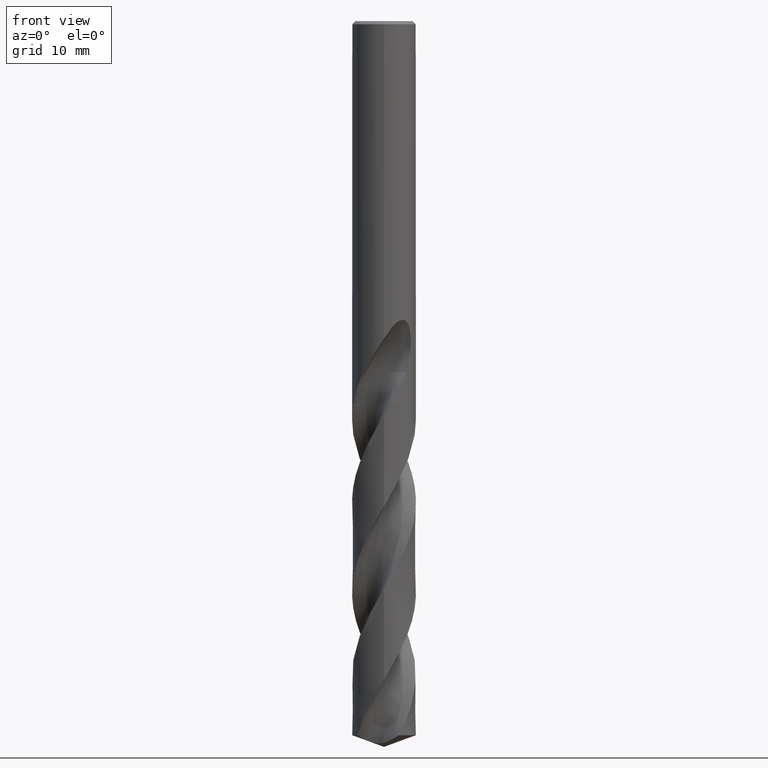
[diagram: clean part render]
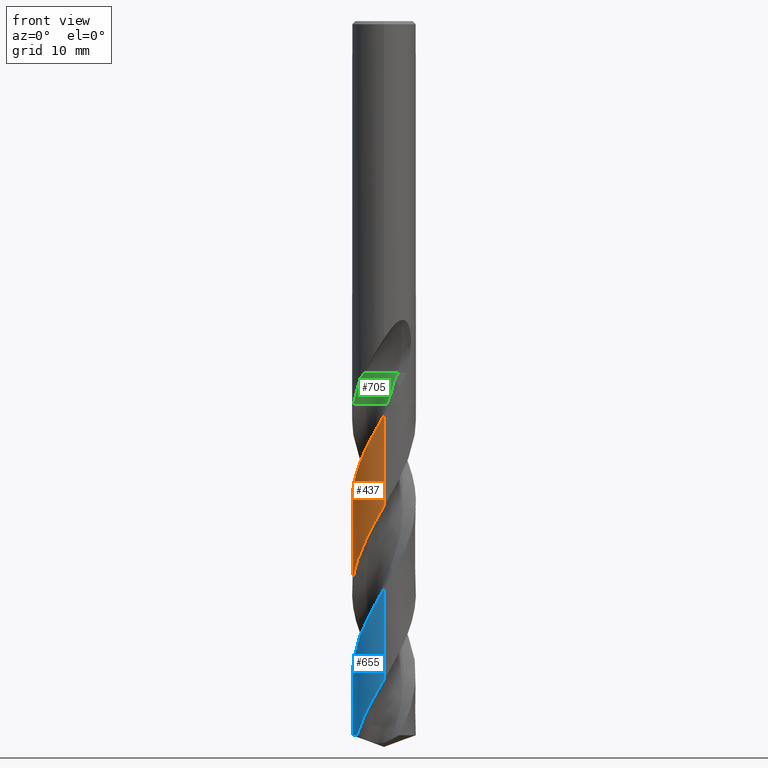
[diagram: same view with three faces highlighted in distinct colors, each labeled with its STEP entity id]
A machine part, front view with three faces highlighted in distinct colors.
Their STEP definitions:

[orange] entity #437 — the highlighted conical surface has half-angle 0 deg.
#319=EDGE_CURVE('',#687,#523,#822,.T.);
#357=VERTEX_POINT('',#864);
#437=ADVANCED_FACE('',(#952),#953,.T.);
#523=VERTEX_POINT('',#1046);
#537=EDGE_CURVE('',#357,#671,#1062,.T.);
#569=EDGE_CURVE('',#523,#357,#1096,.T.);
#647=EDGE_CURVE('',#671,#687,#1180,.T.);
#671=VERTEX_POINT('',#1206);
#687=VERTEX_POINT('',#1223);
#822=B_SPLINE_CURVE_WITH_KNOTS('',3,(#2224,#2225,#2226,#2227,#2228,#2229,#2230,#2231,#2232,#2233,#2234,#2235,#2236,#2237,#2238,#2239,#2240,#2241,#2242,#2243,#2244,#2245,#2246,#2247,#2248,#2249,#2250,#2251,#2252,#2253,#2254,#2255,#2256,#2257,#2258,#2259,#2260,#2261,#2262,#2263,#2264,#2265,#2266,#2267,#2268,#2269,#2270,#2271,#2272,#2273,#2274,#2275,#2276,#2277,#2278,#2279,#2280,#2281,#2282,#2283,#2284,#2285,#2286,#2287,#2288,#2289,#2290,#2291),.UNSPECIFIED.,.F.,.F.,(4,2,2,2,2,2,2,2,2,2,2,2,2,2,2,2,2,2,2,2,2,2,2,2,2,2,2,2,2,2,2,2,2,4),(0.0,1.21470660445528,2.88992575692301,3.66820543983101,6.72886018401619,8.27477984347292,9.89309175709029,11.4236836709163,12.9633022075795,15.2010892852707,16.8187820528851,18.3563353365538,19.8136682988432,22.16412077988,23.2174681111937,25.5895469747613,26.62190761884,29.016702483235,30.0285684083786,32.4537640772205,33.4409330301514,35.9091020663938,36.3889239319888,38.1095191270931,40.5949571447121,42.4431860010439,43.8255384808833,45.9266508747773,46.9853783580276,47.5146592901951,47.7791532860159,47.9113368759498,47.9774071174312,48.0434848055075),.UNSPECIFIED.);
#864=CARTESIAN_POINT('',(3.01023582305675E-012,3.9999832559542,-82.5879527398844));
#952=FACE_OUTER_BOUND('',#3878,.T.);
#953=CONICAL_SURFACE('',#3879,3.99995,2.4070795639818E-006);
#1046=CARTESIAN_POINT('',(-5.13151879605587E-014,3.99995567115679,-71.1280916609645));
#1062=B_SPLINE_CURVE_WITH_KNOTS('',3,(#5519,#5520,#5521,#5522,#5523,#5524,#5525,#5526,#5527,#5528,#5529,#5530,#5531,#5532,#5533,#5534,#5535,#5536,#5537,#5538,#5539,#5540,#5541,#5542,#5543,#5544,#5545,#5546,#5547,#5548,#5549,#5550,#5551,#5552,#5553,#5554,#5555,#5556,#5557,#5558,#5559,#5560,#5561,#5562,#5563,#5564,#5565,#5566,#5567,#5568,#5569,#5570,#5571,#5572,#5573,#5574,#5575,#5576,#5577,#5578,#5579,#5580,#5581,#5582,#5583,#5584,#5585,#5586),.UNSPECIFIED.,.F.,.F.,(4,2,2,2,2,2,2,2,2,2,2,2,2,2,2,2,2,2,2,2,2,2,2,2,2,2,2,2,2,2,2,2,2,4),(0.0,0.0493956605018674,2.54333531475925,4.95671834376508,5.11327192892611,7.42455864099268,9.9078366327271,11.061783256222,12.2180228528709,14.7432899821327,15.3721329747508,18.3471272415403,18.430731429163,20.7491586545974,23.0243803739876,25.0103426921519,25.1644680534812,27.5308029059884,28.446373840541,28.4848763047989,31.8283184665091,31.8798887462776,33.5400344731466,34.371921163922,36.0374870123545,37.8455017339473,39.5955820913231,41.8245345099349,41.9095851580214,43.2517937429364,43.7549006291056,45.5209235641333,46.4020653415621,47.2781858079344),.UNSPECIFIED.);
#1096=LINE('',#5652,#5653);
#1180=LINE('',#6719,#6720);
#1206=CARTESIAN_POINT('',(2.14874850402361E-012,-3.99993090915214,-60.8409349672388));
#1223=CARTESIAN_POINT('',(6.25744557154397E-013,-3.99990333425071,-49.3851850878905));
#2224=CARTESIAN_POINT('',(0.792705029585015,-3.92056358340639,-48.0033995222108));
#2225=CARTESIAN_POINT('',(0.593834824186104,-3.96077432922653,-48.3537986233693));
#2226=CARTESIAN_POINT('',(0.392490692018804,-3.98573529056258,-48.7046214251891));
#2227=CARTESIAN_POINT('',(-0.0882340696343566,-4.00864997924571,-49.5386329232446));
#2228=CARTESIAN_POINT('',(-0.367671927464107,-3.9927541653395,-50.019538145981));
#2229=CARTESIAN_POINT('',(-0.77145880962735,-3.92695118198488,-50.7271914779638));
#2230=CARTESIAN_POINT('',(-0.89842995417066,-3.89986023719875,-50.9515547312676));
#2231=CARTESIAN_POINT('',(-1.5170091755006,-3.73607180376826,-52.0589419833636));
#2232=CARTESIAN_POINT('',(-1.98053933554995,-3.51236660554911,-52.933156897862));
#2233=CARTESIAN_POINT('',(-2.59596266310425,-3.05395147328899,-54.2622391198227));
#2234=CARTESIAN_POINT('',(-2.78730549666999,-2.88041281069791,-54.7070437746814));
#2235=CARTESIAN_POINT('',(-3.14226854965443,-2.48965695505272,-55.6194979819782));
#2236=CARTESIAN_POINT('',(-3.30295350078418,-2.27211464723646,-56.0848036614206));
#2237=CARTESIAN_POINT('',(-3.57047533737223,-1.82100729451371,-56.9934117125087));
#2238=CARTESIAN_POINT('',(-3.67934786079763,-1.58964260354859,-57.4341718083801));
#2239=CARTESIAN_POINT('',(-3.85210502274107,-1.10753750497279,-58.3196533815615));
#2240=CARTESIAN_POINT('',(-3.91520047106557,-0.858152976048953,-58.7618530912552));
#2241=CARTESIAN_POINT('',(-4.01033481769289,-0.23596535173475,-59.8518490023335));
#2242=CARTESIAN_POINT('',(-4.01491834018042,0.139008969278411,-60.4949814059941));
#2243=CARTESIAN_POINT('',(-3.93298402856832,0.77715755658142,-61.6070511445396));
#2244=CARTESIAN_POINT('',(-3.8716152194593,1.04053150740565,-62.0725750062154));
#2245=CARTESIAN_POINT('',(-3.70135668050921,1.53787767652384,-62.9831881023121));
#2246=CARTESIAN_POINT('',(-3.5952372389739,1.77188788084894,-63.4258841320657));
#2247=CARTESIAN_POINT('',(-3.34608744566466,2.20507230038598,-64.2897756079491));
#2248=CARTESIAN_POINT('',(-3.20597348429732,2.40421179194829,-64.7087145174554));
#2249=CARTESIAN_POINT('',(-2.7952114598011,2.88786339145886,-65.8077323462778));
#2250=CARTESIAN_POINT('',(-2.49895313205537,3.14780820912527,-66.482741714667));
#2251=CARTESIAN_POINT('',(-2.02164283541117,3.4559289804258,-67.4646734162658));
#2252=CARTESIAN_POINT('',(-1.86793022409704,3.54136066362483,-67.7681241220208));
#2253=CARTESIAN_POINT('',(-1.35179493145241,3.78530526836826,-68.7568953897338));
#2254=CARTESIAN_POINT('',(-0.970987412517461,3.90045912886311,-69.4380617605234));
#2255=CARTESIAN_POINT('',(-0.408688505132852,3.98275058712962,-70.4202762566773));
#2256=CARTESIAN_POINT('',(-0.236884348359483,3.99663991898641,-70.7177526681779));
#2257=CARTESIAN_POINT('',(0.334259060949001,4.0059017201977,-71.7071146667362));
#2258=CARTESIAN_POINT('',(0.732430636125259,3.95259967752154,-72.3947301519464));
#2259=CARTESIAN_POINT('',(1.27854126315366,3.79388390574565,-73.3776669899576));
#2260=CARTESIAN_POINT('',(1.43746632714937,3.73655349054647,-73.6693053113491));
#2261=CARTESIAN_POINT('',(1.96303023771429,3.50850943658649,-74.6615998487418));
#2262=CARTESIAN_POINT('',(2.30765651237816,3.29216911366655,-75.3578116932206));
#2263=CARTESIAN_POINT('',(2.73885344484995,2.91986105705723,-76.3424572959657));
#2264=CARTESIAN_POINT('',(2.85671661783404,2.80463879514428,-76.6270522196018));
#2265=CARTESIAN_POINT('',(3.24299454561875,2.37739859501013,-77.6246658506224));
#2266=CARTESIAN_POINT('',(3.47041384829746,2.03120836144196,-78.3329531496024));
#2267=CARTESIAN_POINT('',(3.67419034340208,1.58320651866214,-79.1836241627987));
#2268=CARTESIAN_POINT('',(3.70514248393421,1.50934761888226,-79.3219824209126));
#2269=CARTESIAN_POINT('',(3.83680691174472,1.16667282576662,-79.9572383353621));
#2270=CARTESIAN_POINT('',(3.91063907095874,0.888349619588474,-80.4536944616244));
#2271=CARTESIAN_POINT('',(4.01671772718102,0.194540274794326,-81.6681444662987));
#2272=CARTESIAN_POINT('',(4.01523323699355,-0.222581514919816,-82.3800810574192));
#2273=CARTESIAN_POINT('',(3.90108363382851,-0.936174040338928,-83.6316649069106));
#2274=CARTESIAN_POINT('',(3.81735358058601,-1.23409553441174,-84.1633535277535));
#2275=CARTESIAN_POINT('',(3.61237429870208,-1.73319602185818,-85.095828443397));
#2276=CARTESIAN_POINT('',(3.50643559037577,-1.93853353020258,-85.494109172271));
#2277=CARTESIAN_POINT('',(3.19678210042452,-2.42964113422144,-86.5003395027009));
#2278=CARTESIAN_POINT('',(2.97171302545019,-2.70037506684917,-87.1047550511199));
#2279=CARTESIAN_POINT('',(2.58401370824362,-3.0584493196208,-88.0168663477417));
#2280=CARTESIAN_POINT('',(2.44632362705642,-3.16965667973837,-88.3220777241166));
#2281=CARTESIAN_POINT('',(2.22948472122813,-3.32222700941133,-88.7805384054119));
#2282=CARTESIAN_POINT('',(2.15554900824961,-3.37066834626685,-88.9333040398171));
#2283=CARTESIAN_POINT('',(2.04235391810204,-3.43958326853041,-89.1624719184842));
#2284=CARTESIAN_POINT('',(2.00425950427646,-3.46191965296364,-89.2388270357694));
#2285=CARTESIAN_POINT('',(1.94658576095606,-3.49446521876496,-89.3533524604395));
#2286=CARTESIAN_POINT('',(1.92727842782503,-3.50515075763305,-89.3915148118556));
#2287=CARTESIAN_POINT('',(1.89819024514482,-3.52093646706824,-89.4487540281918));
#2288=CARTESIAN_POINT('',(1.88847474906645,-3.52615701474369,-89.4678296109569));
#2289=CARTESIAN_POINT('',(1.86900007698601,-3.53651801138471,-89.5059833991611));
#2290=CARTESIAN_POINT('',(1.85924430169938,-3.541656636867,-89.5250541010458));
#2291=CARTESIAN_POINT('',(1.84947166792346,-3.54675267668166,-89.5441190629352));
#3878=EDGE_LOOP('',(#8971,#8972,#8973,#8974));
#3879=AXIS2_PLACEMENT_3D('',#8975,#8976,#8977);
#5519=CARTESIAN_POINT('',(3.37643723205018,2.14468450314384,-89.5441190629352));
#5520=CARTESIAN_POINT('',(3.37203960974127,2.15160773973686,-89.5298420468512));
#5521=CARTESIAN_POINT('',(3.36758779153997,2.15856930455091,-89.5154576563128));
#5522=CARTESIAN_POINT('',(3.13514642352867,2.51953967494594,-88.768278583085));
#5523=CARTESIAN_POINT('',(2.85159387156475,2.83693079791392,-88.0382298750346));
#5524=CARTESIAN_POINT('',(2.20407137925213,3.36309057365659,-86.59826714627));
#5525=CARTESIAN_POINT('',(1.84885603727622,3.57037824901335,-85.9021138024111));
#5526=CARTESIAN_POINT('',(1.44542855319316,3.72979220334375,-85.146278751592));
#5527=CARTESIAN_POINT('',(1.42080692423178,3.73924093063026,-85.1002676878953));
#5528=CARTESIAN_POINT('',(1.02979113091472,3.88486048073702,-84.3733014710748));
#5529=CARTESIAN_POINT('',(0.644708660085813,3.96720574254255,-83.7035761597261));
#5530=CARTESIAN_POINT('',(-0.169000755027505,4.01866010428783,-82.2956675837848));
#5531=CARTESIAN_POINT('',(-0.591980198724435,3.9784517631108,-81.5635101233966));
#5532=CARTESIAN_POINT('',(-1.1913895178792,3.82347986272793,-80.4959880296611));
#5533=CARTESIAN_POINT('',(-1.37742522012844,3.7604378143141,-80.1585914113997));
#5534=CARTESIAN_POINT('',(-1.73863169502823,3.60769901830542,-79.4799622600142));
#5535=CARTESIAN_POINT('',(-1.91310831113954,3.51825948904597,-79.1384787759744));
#5536=CARTESIAN_POINT('',(-2.44556226099517,3.19403438477661,-78.0575453913462));
#5537=CARTESIAN_POINT('',(-2.77239155000087,2.91477218034308,-77.3304659104256));
#5538=CARTESIAN_POINT('',(-3.11759827785608,2.50831253686866,-76.404707207783));
#5539=CARTESIAN_POINT('',(-3.18302141138948,2.42474999519122,-76.2196528665193));
#5540=CARTESIAN_POINT('',(-3.53909427257262,1.9306268972001,-75.1619052414289));
#5541=CARTESIAN_POINT('',(-3.75299159443172,1.47175937265243,-74.3117688642782));
#5542=CARTESIAN_POINT('',(-3.88002583458006,0.972258911400971,-73.414298090402));
#5543=CARTESIAN_POINT('',(-3.8834175571789,0.958621404142051,-73.3898077692349));
#5544=CARTESIAN_POINT('',(-3.97892206242222,0.565787200706126,-72.6857065158225));
#5545=CARTESIAN_POINT('',(-4.01538423134703,0.174280202358847,-72.0170168056545));
#5546=CARTESIAN_POINT('',(-3.97308027933103,-0.602166297290244,-70.6747010726664));
#5547=CARTESIAN_POINT('',(-3.89678127435974,-0.981378102468641,-70.0059688227429));
#5548=CARTESIAN_POINT('',(-3.65433939110241,-1.66085999260418,-68.7609132716697));
#5549=CARTESIAN_POINT('',(-3.50222644059911,-1.961027619091,-68.1872496470361));
#5550=CARTESIAN_POINT('',(-3.30078397180879,-2.25944112282712,-67.5606503475009));
#5551=CARTESIAN_POINT('',(-3.28610512916206,-2.28073640727199,-67.515570091981));
#5552=CARTESIAN_POINT('',(-3.04256435562648,-2.62682731349986,-66.7787349089219));
#5553=CARTESIAN_POINT('',(-2.76632509844971,-2.91659289582553,-66.0984847428891));
#5554=CARTESIAN_POINT('',(-2.3285306348539,-3.25597234119932,-65.1419090085913));
#5555=CARTESIAN_POINT('',(-2.20141567575887,-3.34318188289208,-64.8754854084203));
#5556=CARTESIAN_POINT('',(-2.06452051917058,-3.42597669466734,-64.5967818404118));
#5557=CARTESIAN_POINT('',(-2.0589940887586,-3.42930090176081,-64.5855442556996));
#5558=CARTESIAN_POINT('',(-1.57078831109525,-3.72134840307619,-63.5945927660675));
#5559=CARTESIAN_POINT('',(-1.03345740580942,-3.90470202139896,-62.6469905132154));
#5560=CARTESIAN_POINT('',(-0.467376430556949,-3.97254291382357,-61.6537137039835));
#5561=CARTESIAN_POINT('',(-0.458754586063215,-3.9735479192442,-61.6385906106537));
#5562=CARTESIAN_POINT('',(-0.170855648537757,-4.00614873671254,-61.1339826470402));
#5563=CARTESIAN_POINT('',(0.111840871614959,-4.00837143169941,-60.6486700820652));
#5564=CARTESIAN_POINT('',(0.534635026028725,-3.96657397028145,-59.9161696784437));
#5565=CARTESIAN_POINT('',(0.674805469782654,-3.94513688917861,-59.672117351298));
#5566=CARTESIAN_POINT('',(1.09094603821995,-3.8587032935747,-58.937595833371));
#5567=CARTESIAN_POINT('',(1.36111894626794,-3.77186917116388,-58.44457335531));
#5568=CARTESIAN_POINT('',(1.90125270674856,-3.53258723015238,-57.4229716090278));
#5569=CARTESIAN_POINT('',(2.16695871942375,-3.3761031587902,-56.896651083308));
#5570=CARTESIAN_POINT('',(2.64932421123509,-3.0114598095705,-55.850296402593));
#5571=CARTESIAN_POINT('',(2.86588162999976,-2.80621906942595,-55.3320604829846));
#5572=CARTESIAN_POINT('',(3.30262585050598,-2.28823713342984,-54.1617205010633));
#5573=CARTESIAN_POINT('',(3.50413460233364,-1.96543975101064,-53.5156267890483));
#5574=CARTESIAN_POINT('',(3.6629305369214,-1.60699738886095,-52.8340178612273));
#5575=CARTESIAN_POINT('',(3.66872272068856,-1.59373075040396,-52.8088580327088));
#5576=CARTESIAN_POINT('',(3.76514576258795,-1.36953813639135,-52.3848196486184));
#5577=CARTESIAN_POINT('',(3.83761953617199,-1.15104359887587,-51.9884071324772));
#5578=CARTESIAN_POINT('',(3.91095179782985,-0.84330398033927,-51.4407790996717));
#5579=CARTESIAN_POINT('',(3.92822569101115,-0.758781753707727,-51.2913408256106));
#5580=CARTESIAN_POINT('',(3.99376730072387,-0.3752190516586,-50.6179264784958));
#5581=CARTESIAN_POINT('',(4.01074411077558,-0.0716290214025677,-50.0961720919378));
#5582=CARTESIAN_POINT('',(3.98447873920254,0.382160752048435,-49.3108045926961));
#5583=CARTESIAN_POINT('',(3.96719485720007,0.532204436391505,-49.0501599761729));
#5584=CARTESIAN_POINT('',(3.91612149454171,0.828010564823526,-48.5279172921929));
#5585=CARTESIAN_POINT('',(3.88251374039952,0.973620670246832,-48.2655214375159));
#5586=CARTESIAN_POINT('',(3.84044825802427,1.11810432397114,-48.0047696247121));
#5652=CARTESIAN_POINT('',(-4.89856961109464E-016,3.99995,-68.7720595314676));
#5653=VECTOR('',#9103,1.0);
#6719=CARTESIAN_POINT('',(4.89815875884899E-016,-3.99995,-68.7720595314676));
#6720=VECTOR('',#9189,1.0);
#8971=ORIENTED_EDGE('',*,*,#569,.T.);
#8972=ORIENTED_EDGE('',*,*,#537,.T.);
#8973=ORIENTED_EDGE('',*,*,#647,.T.);
#8974=ORIENTED_EDGE('',*,*,#319,.T.);
#8975=CARTESIAN_POINT('',(0.0,0.0,-68.7720595314676));
#8976=DIRECTION('',(0.0,-0.0,-1.0));
#8977=DIRECTION('',(0.0,1.0,0.0));
#9103=DIRECTION('',(-2.94772492820526E-022,2.40707956397947E-006,-0.999999999997103));
#9189=DIRECTION('',(-2.94772492820526E-022,2.40707956397947E-006,0.999999999997103));

[blue] entity #655 — the highlighted conical surface has half-angle 0 deg.
#325=EDGE_CURVE('',#355,#749,#829,.T.);
#355=VERTEX_POINT('',#862);
#463=EDGE_CURVE('',#749,#539,#981,.T.);
#539=VERTEX_POINT('',#1064);
#563=EDGE_CURVE('',#355,#707,#1090,.T.);
#655=ADVANCED_FACE('',(#1188),#1189,.T.);
#707=VERTEX_POINT('',#1245);
#731=EDGE_CURVE('',#539,#707,#1271,.T.);
#749=VERTEX_POINT('',#1292);
#829=B_SPLINE_CURVE_WITH_KNOTS('',3,(#2329,#2330,#2331,#2332,#2333,#2334,#2335,#2336,#2337,#2338,#2339,#2340,#2341,#2342,#2343,#2344,#2345,#2346,#2347,#2348,#2349,#2350,#2351,#2352,#2353,#2354,#2355,#2356,#2357,#2358,#2359,#2360,#2361,#2362,#2363,#2364,#2365,#2366,#2367,#2368,#2369,#2370,#2371,#2372,#2373,#2374,#2375,#2376,#2377,#2378,#2379,#2380,#2381,#2382,#2383,#2384,#2385,#2386,#2387,#2388,#2389,#2390,#2391,#2392,#2393,#2394),.UNSPECIFIED.,.F.,.F.,(4,2,2,2,2,2,2,2,2,2,2,2,2,2,2,2,2,2,2,2,2,2,2,2,2,2,2,2,2,2,2,2,4),(0.0,0.0493956605018793,2.54333531476122,4.95671834429746,5.16207092435844,6.82021950937022,7.65092987717426,9.3463538036189,11.0225692713956,12.0140537313832,13.9168993843656,16.5268397492028,17.6293815214254,18.7542731673676,21.2074778368481,22.1651578468353,24.1996691907494,26.0249008941339,27.2141217233639,29.8478591418351,30.909170222033,32.1432109357222,34.4611541620709,35.4142567823333,37.9638944035977,39.0372361317136,41.1146844201569,42.6748663187375,43.262159536113,43.7755459704738,45.5776537313877,46.4767977918427,47.3708149932341),.UNSPECIFIED.);
#862=CARTESIAN_POINT('',(-3.37643723205017,-2.14468450314385,-89.5441190629352));
#981=LINE('',#4347,#4348);
#1064=CARTESIAN_POINT('',(2.12297517040518E-013,-3.99995567115678,-71.1280916609639));
#1090=CIRCLE('',#5640,4.0);
#1188=FACE_OUTER_BOUND('',#6759,.T.);
#1189=CONICAL_SURFACE('',#6760,3.99995,2.4070795639818E-006);
#1245=CARTESIAN_POINT('',(-1.84947166792352,3.54675267668161,-89.5441190629352));
#1271=B_SPLINE_CURVE_WITH_KNOTS('',3,(#8044,#8045,#8046,#8047,#8048,#8049,#8050,#8051,#8052,#8053,#8054,#8055,#8056,#8057,#8058,#8059,#8060,#8061,#8062,#8063,#8064,#8065,#8066,#8067,#8068,#8069,#8070,#8071,#8072,#8073,#8074,#8075,#8076,#8077,#8078,#8079,#8080,#8081,#8082,#8083,#8084,#8085,#8086,#8087,#8088,#8089,#8090,#8091,#8092,#8093,#8094,#8095,#8096,#8097,#8098,#8099,#8100,#8101,#8102,#8103,#8104,#8105,#8106,#8107,#8108,#8109,#8110,#8111,#8112,#8113,#8114,#8115,#8116,#8117,#8118,#8119,#8120,#8121),.UNSPECIFIED.,.F.,.F.,(4,2,2,2,2,2,2,2,2,2,2,2,2,2,2,2,2,2,2,2,2,2,2,2,2,2,2,2,2,2,2,2,2,2,2,2,2,2,4),(0.0,1.21470659957911,2.88992579327813,3.59007138023678,4.28474777653697,4.98429860725069,6.37461169982735,7.9079460670872,8.68124041234454,9.62887573362584,11.9234383334633,13.0172288620573,15.3865071190837,16.4278392052536,18.8122851706829,19.8323664170161,22.2415218205269,23.2421432341665,25.6875440497146,26.1771586158036,27.874988075498,28.6528375814861,29.9540321503487,32.2382772404343,33.0442702836859,34.8403077246009,35.6164893442441,36.4221297915736,38.2013132188323,40.654269277748,42.4831845101061,43.8471264385342,45.9257452140165,46.9729903106333,47.496602681216,47.7582640895791,47.8890323184533,47.9543952617943,48.0197654860722),.UNSPECIFIED.);
#1292=CARTESIAN_POINT('',(-1.74724611973386E-012,-3.9999832559542,-82.5879527398801));
#2329=CARTESIAN_POINT('',(-3.37643723205018,-2.14468450314384,-89.5441190629352));
#2330=CARTESIAN_POINT('',(-3.37203960974127,-2.15160773973687,-89.5298420468512));
#2331=CARTESIAN_POINT('',(-3.36758779153997,-2.15856930455092,-89.5154576563128));
#2332=CARTESIAN_POINT('',(-3.13514642352867,-2.51953967494594,-88.768278583085));
#2333=CARTESIAN_POINT('',(-2.85159387156475,-2.83693079791392,-88.0382298750346));
#2334=CARTESIAN_POINT('',(-2.2040713791824,-3.36309057371326,-86.598267146115));
#2335=CARTESIAN_POINT('',(-1.8488560371512,-3.57037824909479,-85.9021138021623));
#2336=CARTESIAN_POINT('',(-1.43776810882928,-3.73281922003214,-85.1319266497076));
#2337=CARTESIAN_POINT('',(-1.40538972363156,-3.7451309019673,-85.0714961268039));
#2338=CARTESIAN_POINT('',(-1.10866718230679,-3.85354051054722,-84.5213679034043));
#2339=CARTESIAN_POINT('',(-0.83437266926095,-3.92222355825971,-84.0360702778314));
#2340=CARTESIAN_POINT('',(-0.413602468577765,-3.98107049937544,-83.3034278757071));
#2341=CARTESIAN_POINT('',(-0.27236438021072,-3.99320883895427,-83.0593580681207));
#2342=CARTESIAN_POINT('',(0.157716518002625,-4.00729268274883,-82.3152197712141));
#2343=CARTESIAN_POINT('',(0.446361171326487,-3.98549551665546,-81.8126458360904));
#2344=CARTESIAN_POINT('',(1.01155680547881,-3.88049788015716,-80.8194026667996));
#2345=CARTESIAN_POINT('',(1.28599656100141,-3.79835694519585,-80.3297913828013));
#2346=CARTESIAN_POINT('',(1.70483106646208,-3.6224116625338,-79.5437914719993));
#2347=CARTESIAN_POINT('',(1.85579296960376,-3.5474005338328,-79.250309305842));
#2348=CARTESIAN_POINT('',(2.28036516353804,-3.30206735709366,-78.398736888735));
#2349=CARTESIAN_POINT('',(2.53950188542489,-3.10733494579557,-77.8451866876962));
#2350=CARTESIAN_POINT('',(3.09290898167989,-2.57504752649884,-76.520222118668));
#2351=CARTESIAN_POINT('',(3.3593591871626,-2.21625075013886,-75.7506764152092));
#2352=CARTESIAN_POINT('',(3.64697391853695,-1.65363498853119,-74.6610463344193));
#2353=CARTESIAN_POINT('',(3.72043569832062,-1.48092116626088,-74.3385821480795));
#2354=CARTESIAN_POINT('',(3.84374952265526,-1.1232907933152,-73.6843718493457));
#2355=CARTESIAN_POINT('',(3.89285133842144,-0.938920648853984,-73.3522896946364));
#2356=CARTESIAN_POINT('',(4.00660532142587,-0.344722139827954,-72.3024094122739));
#2357=CARTESIAN_POINT('',(4.02077294394861,0.0722573838916717,-71.5957748643769));
#2358=CARTESIAN_POINT('',(3.95093837859447,0.644950275501229,-70.596062745307));
#2359=CARTESIAN_POINT('',(3.92164712250613,0.804045767882711,-70.3141121959831));
#2360=CARTESIAN_POINT('',(3.80018517593651,1.2947361869562,-69.4373419718357));
#2361=CARTESIAN_POINT('',(3.67488001378967,1.61664672344881,-68.8487902225268));
#2362=CARTESIAN_POINT('',(3.36132844119091,2.19010896421107,-67.7194623196146));
#2363=CARTESIAN_POINT('',(3.1823716433245,2.44286356888176,-67.1819410403473));
#2364=CARTESIAN_POINT('',(2.84132936062453,2.8225771290395,-66.2999367719666));
#2365=CARTESIAN_POINT('',(2.69559607917947,2.96208460029407,-65.9535399814092));
#2366=CARTESIAN_POINT('',(2.19496253899932,3.37357120630001,-64.8355646501915));
#2367=CARTESIAN_POINT('',(1.80527681518527,3.59720072763566,-64.061928148931));
#2368=CARTESIAN_POINT('',(1.21767650539215,3.81433171298567,-62.9815427102496));
#2369=CARTESIAN_POINT('',(1.04501538764951,3.86519056403454,-62.6722468337628));
#2370=CARTESIAN_POINT('',(0.665779633637514,3.9496632121309,-62.0007923763144));
#2371=CARTESIAN_POINT('',(0.459164243419115,3.97892238404318,-61.637885329435));
#2372=CARTESIAN_POINT('',(-0.137849047989643,4.01656940699658,-60.5998183297282));
#2373=CARTESIAN_POINT('',(-0.52908020672857,3.98400567094734,-59.9334018297157));
#2374=CARTESIAN_POINT('',(-1.06624533752797,3.85854456460532,-58.9787151800594));
#2375=CARTESIAN_POINT('',(-1.22001307304529,3.81268483305264,-58.6993069407002));
#2376=CARTESIAN_POINT('',(-1.77235308192663,3.61127217770812,-57.6784012932428));
#2377=CARTESIAN_POINT('',(-2.14823862113425,3.40114454601942,-56.9498814839393));
#2378=CARTESIAN_POINT('',(-2.62514907168666,3.02331549336068,-55.8953137822496));
#2379=CARTESIAN_POINT('',(-2.75845169308609,2.9022016321167,-55.5813138552892));
#2380=CARTESIAN_POINT('',(-3.12514295274905,2.52081332303316,-54.6640959714939));
#2381=CARTESIAN_POINT('',(-3.3332039684609,2.23859384918738,-54.067148901277));
#2382=CARTESIAN_POINT('',(-3.62896904323992,1.70259273664088,-53.0097076681084));
#2383=CARTESIAN_POINT('',(-3.73270277467611,1.46112157265699,-52.5541648204049));
#2384=CARTESIAN_POINT('',(-3.84193018560296,1.11739734119137,-51.9298916873407));
#2385=CARTESIAN_POINT('',(-3.86831359988876,1.02232555386938,-51.7593432787553));
#2386=CARTESIAN_POINT('',(-3.91112234237464,0.842508955064557,-51.4393712566976));
#2387=CARTESIAN_POINT('',(-3.92837236399714,0.758018018529261,-51.2899944861498));
#2388=CARTESIAN_POINT('',(-3.99381617197694,0.374599047269241,-50.6168572302976));
#2389=CARTESIAN_POINT('',(-4.01074354031018,0.0711314950271219,-50.0953142263789));
#2390=CARTESIAN_POINT('',(-3.9844467900866,-0.382468973232567,-49.3102695610007));
#2391=CARTESIAN_POINT('',(-3.96715964872435,-0.532449093280806,-49.0497315146476));
#2392=CARTESIAN_POINT('',(-3.91609401836538,-0.828129146669319,-48.527704475037));
#2393=CARTESIAN_POINT('',(-3.88249672789565,-0.973679103636391,-48.265415981903));
#2394=CARTESIAN_POINT('',(-3.84044825802427,-1.11810432397114,-48.0047696247121));
#4347=CARTESIAN_POINT('',(4.89837979731984E-016,-3.99995,-68.7720595314676));
#4348=VECTOR('',#9004,1.0);
#5640=AXIS2_PLACEMENT_3D('',#9097,#9098,#9099);
#6759=EDGE_LOOP('',(#9194,#9195,#9196,#9197));
#6760=AXIS2_PLACEMENT_3D('',#9198,#9199,#9200);
#8044=CARTESIAN_POINT('',(-0.792705029585013,3.92056358340638,-48.0033995222109));
#8045=CARTESIAN_POINT('',(-0.59383482498443,3.9607743290651,-48.3537986219627));
#8046=CARTESIAN_POINT('',(-0.392490693636606,3.98573529036207,-48.7046214223698));
#8047=CARTESIAN_POINT('',(0.0882340740514669,4.00864997962643,-49.5386329309252));
#8048=CARTESIAN_POINT('',(0.367671938766751,3.99275416477964,-50.0195381654185));
#8049=CARTESIAN_POINT('',(0.758599834976799,3.92904673960679,-50.7046555893634));
#8050=CARTESIAN_POINT('',(0.872930850069027,3.90523605695034,-50.9065168671398));
#8051=CARTESIAN_POINT('',(1.09826169287429,3.847920732299,-51.3088649313368));
#8052=CARTESIAN_POINT('',(1.20918506455408,3.81451757519382,-51.5092143338292));
#8053=CARTESIAN_POINT('',(1.42857255956212,3.73792052133722,-51.9114045295467));
#8054=CARTESIAN_POINT('',(1.5369389342075,3.69468578665603,-52.1130979273766));
#8055=CARTESIAN_POINT('',(1.85463271627387,3.55153027704499,-52.7158750826151));
#8056=CARTESIAN_POINT('',(2.05719761561379,3.43814936635287,-53.1158719108875));
#8057=CARTESIAN_POINT('',(2.45995593799641,3.16435909043497,-53.9594499767407));
#8058=CARTESIAN_POINT('',(2.65709545724162,3.0007640591437,-54.4009983429887));
#8059=CARTESIAN_POINT('',(2.92829345209345,2.72783283660792,-55.0662536813513));
#8060=CARTESIAN_POINT('',(3.0147442055265,2.63197734439694,-55.2890573283865));
#8061=CARTESIAN_POINT('',(3.1965123888797,2.40970077458956,-55.7853427324591));
#8062=CARTESIAN_POINT('',(3.28917217438012,2.28158308304763,-56.0583932206331));
#8063=CARTESIAN_POINT('',(3.57926870765193,1.82600999200236,-56.9939377806343));
#8064=CARTESIAN_POINT('',(3.73748820077935,1.47552387564445,-57.6529555363271));
#8065=CARTESIAN_POINT('',(3.89405544196752,0.932228356355396,-58.6301605428932));
#8066=CARTESIAN_POINT('',(3.93249376794588,0.753737353184757,-58.9450904355808));
#8067=CARTESIAN_POINT('',(4.01521096901581,0.182659832455661,-59.94445853738));
#8068=CARTESIAN_POINT('',(4.01369154464385,-0.214608719103637,-60.624692470908));
#8069=CARTESIAN_POINT('',(3.92754227041451,-0.777221460441256,-61.608449261142));
#8070=CARTESIAN_POINT('',(3.89009548891063,-0.946960137396765,-61.9084256350784));
#8071=CARTESIAN_POINT('',(3.73117045648126,-1.49523216424414,-62.8971524706884));
#8072=CARTESIAN_POINT('',(3.56420796361312,-1.85857347465211,-63.5816872882481));
#8073=CARTESIAN_POINT('',(3.25289687187391,-2.33391649327017,-64.5637706117593));
#8074=CARTESIAN_POINT('',(3.1507008410307,-2.47012269938757,-64.8576858013077));
#8075=CARTESIAN_POINT('',(2.77933928434134,-2.90447916391498,-65.8474872266538));
#8076=CARTESIAN_POINT('',(2.4737571713395,-3.1688760031394,-66.5390314241856));
#8077=CARTESIAN_POINT('',(1.99236350314178,-3.47245690249713,-67.5227045996133));
#8078=CARTESIAN_POINT('',(1.84577241614169,-3.55253618848202,-67.811081101272));
#8079=CARTESIAN_POINT('',(1.32557704866318,-3.79585684760778,-68.8057896272672));
#8080=CARTESIAN_POINT('',(0.931886639991882,-3.91124118033691,-69.5075514309156));
#8081=CARTESIAN_POINT('',(0.446263785900396,-3.9758216660708,-70.3543023518672));
#8082=CARTESIAN_POINT('',(0.364981321386528,-3.98410487481845,-70.4954491047592));
#8083=CARTESIAN_POINT('',(0.00102759966597787,-4.00996857294482,-71.126802630061));
#8084=CARTESIAN_POINT('',(-0.28285601033794,-3.99998490423543,-71.6166171276667));
#8085=CARTESIAN_POINT('',(-0.691763180625621,-3.94182350819548,-72.3312842471485));
#8086=CARTESIAN_POINT('',(-0.819323301867001,-3.91730116648105,-72.5556246135519));
#8087=CARTESIAN_POINT('',(-1.15660461152506,-3.83525056385964,-73.1556331811292));
#8088=CARTESIAN_POINT('',(-1.36299807098807,-3.76682869984755,-73.5301266777829));
#8089=CARTESIAN_POINT('',(-1.91331337021444,-3.53327106403717,-74.5655060465385));
#8090=CARTESIAN_POINT('',(-2.24117071140681,-3.33502577862284,-75.2221995905969));
#8091=CARTESIAN_POINT('',(-2.6402471804125,-3.00781542661954,-76.1141656441935));
#8092=CARTESIAN_POINT('',(-2.73989860597615,-2.91732512879175,-76.3464476937538));
#8093=CARTESIAN_POINT('',(-3.04619283011184,-2.60964917780127,-77.0978635380749));
#8094=CARTESIAN_POINT('',(-3.23316080755072,-2.3740996309937,-77.6159862460298));
#8095=CARTESIAN_POINT('',(-3.46074200949858,-2.00993556003518,-78.358801254355));
#8096=CARTESIAN_POINT('',(-3.52405596640927,-1.89674209646361,-78.5827338196086));
#8097=CARTESIAN_POINT('',(-3.64168844843744,-1.66012513060244,-79.0394399957069));
#8098=CARTESIAN_POINT('',(-3.69544529762177,-1.53673867760002,-79.2716788183717));
#8099=CARTESIAN_POINT('',(-3.84761682360034,-1.13306506021216,-80.0183345365691));
#8100=CARTESIAN_POINT('',(-3.92112715592967,-0.844305114033271,-80.5318099107777));
#8101=CARTESIAN_POINT('',(-4.01830679635739,-0.144329986432331,-81.7543755836294));
#8102=CARTESIAN_POINT('',(-4.01195937297882,0.267489301068498,-82.457775959726));
#8103=CARTESIAN_POINT('',(-3.89212313047969,0.971793844840182,-83.6950309830386));
#8104=CARTESIAN_POINT('',(-3.80664424212797,1.26599949236447,-84.2213713846719));
#8105=CARTESIAN_POINT('',(-3.60019825551746,1.75796256159103,-85.1434299202351));
#8106=CARTESIAN_POINT('',(-3.49430350224293,1.95997223293349,-85.5367438208722));
#8107=CARTESIAN_POINT('',(-3.18551846433629,2.44387943563879,-86.5316425894677));
#8108=CARTESIAN_POINT('',(-2.96168428196399,2.7109084176707,-87.1298457863471));
#8109=CARTESIAN_POINT('',(-2.57700176196112,3.064254615149,-88.0325727047202));
#8110=CARTESIAN_POINT('',(-2.44051835857482,3.17402705823469,-88.3346349999649));
#8111=CARTESIAN_POINT('',(-2.22571599101255,3.32472911760006,-88.7883582832395));
#8112=CARTESIAN_POINT('',(-2.15248940376413,3.37259943559142,-88.9395596406949));
#8113=CARTESIAN_POINT('',(-2.04040766130787,3.44073240666981,-89.1663801036557));
#8114=CARTESIAN_POINT('',(-2.00269229763772,3.46282077560761,-89.2419532456168));
#8115=CARTESIAN_POINT('',(-1.94559841443148,3.49501362133955,-89.3553056821104));
#8116=CARTESIAN_POINT('',(-1.92648614609798,3.50558485968053,-89.3930772337516));
#8117=CARTESIAN_POINT('',(-1.89769321224785,3.52120403049714,-89.4497303095198));
#8118=CARTESIAN_POINT('',(-1.88807654186313,3.52636990109415,-89.468610585401));
#8119=CARTESIAN_POINT('',(-1.86880042103514,3.53662317010942,-89.5063737016814));
#8120=CARTESIAN_POINT('',(-1.85914429686605,3.54170878540997,-89.5252491956722));
#8121=CARTESIAN_POINT('',(-1.84947166792346,3.54675267668166,-89.5441190629352));
#9004=DIRECTION('',(-2.94772492820526E-022,2.40707956397947E-006,0.999999999997103));
#9097=CARTESIAN_POINT('',(0.0,0.0,-89.5441190629352));
#9098=DIRECTION('',(0.0,0.0,-1.0));
#9099=DIRECTION('',(0.0,1.0,0.0));
#9194=ORIENTED_EDGE('',*,*,#463,.T.);
#9195=ORIENTED_EDGE('',*,*,#731,.T.);
#9196=ORIENTED_EDGE('',*,*,#563,.F.);
#9197=ORIENTED_EDGE('',*,*,#325,.T.);
#9198=CARTESIAN_POINT('',(0.0,0.0,-68.7720595314676));
#9199=DIRECTION('',(0.0,-0.0,-1.0));
#9200=DIRECTION('',(0.0,1.0,0.0));

[green] entity #705 — the highlighted face is a freeform B-spline surface patch.
#309=EDGE_CURVE('',#683,#685,#810,.T.);
#409=EDGE_CURVE('',#555,#683,#921,.T.);
#453=EDGE_CURVE('',#685,#599,#970,.T.);
#555=VERTEX_POINT('',#1081);
#597=EDGE_CURVE('',#719,#555,#1125,.T.);
#599=VERTEX_POINT('',#1127);
#683=VERTEX_POINT('',#1219);
#685=VERTEX_POINT('',#1221);
#701=EDGE_CURVE('',#599,#719,#1238,.T.);
#705=ADVANCED_FACE('',(#1242),#1243,.F.);
#719=VERTEX_POINT('',#1258);
#810=B_SPLINE_CURVE_WITH_KNOTS('',3,(#1582,#1583,#1584,#1585,#1586,#1587,#1588,#1589,#1590,#1591,#1592,#1593,#1594,#1595),.UNSPECIFIED.,.F.,.F.,(4,2,2,2,2,2,4),(0.0,1.04105867677146,2.08135611188664,3.12148193005078,4.16210319264938,4.85750600932006,5.55293171234725),.UNSPECIFIED.);
#921=B_SPLINE_CURVE_WITH_KNOTS('',3,(#3721,#3722,#3723,#3724,#3725,#3726,#3727,#3728,#3729,#3730,#3731,#3732,#3733,#3734,#3735,#3736,#3737,#3738,#3739,#3740,#3741,#3742,#3743,#3744,#3745,#3746,#3747,#3748,#3749,#3750,#3751,#3752,#3753,#3754,#3755,#3756,#3757,#3758,#3759,#3760,#3761,#3762,#3763,#3764,#3765,#3766,#3767,#3768,#3769,#3770,#3771,#3772,#3773,#3774,#3775,#3776),.UNSPECIFIED.,.F.,.F.,(4,1,2,1,2,2,2,2,2,1,2,1,2,1,2,1,2,1,2,1,2,1,2,1,2,1,2,1,2,1,2,1,2,2,4),(0.0,0.943118589325225,1.88623717865045,2.82935576797567,3.7724743573009,5.65871153595135,7.5449487146018,9.43118589325225,11.3174230719027,13.2036602505531,15.0898974292036,16.976134607854,18.8623717865045,20.7486089651549,22.6348461438054,24.5210833224558,26.4073205011063,28.2935576797567,30.1797948584072,32.0660320370576,33.9522692157081,35.8385063943585,37.724743573009,39.6109807516594,41.4972179303099,43.3834551089603,45.2696922876108,47.1559294662612,49.0421666449117,50.9284038235621,52.8146410022126,54.700878180863,56.5871153595135,58.4733525381639,60.3595897168144),.UNSPECIFIED.);
#970=B_SPLINE_CURVE_WITH_KNOTS('',3,(#4244,#4245,#4246,#4247,#4248,#4249,#4250,#4251,#4252,#4253,#4254,#4255),.UNSPECIFIED.,.F.,.F.,(4,2,2,2,2,4),(0.0,0.673281751932952,1.64337023256812,2.38350246427069,3.38728832690243,5.3568489101996),.UNSPECIFIED.);
#1081=CARTESIAN_POINT('',(1.88561808545044,-1.98104858454956,-44.053));
#1125=CIRCLE('',#5816,2.66666667);
#1127=CARTESIAN_POINT('',(-2.54885976013372,-3.08274454393663,-44.053));
#1219=CARTESIAN_POINT('',(0.391247382162112,-2.4799416168891,-48.0000000000004));
#1221=CARTESIAN_POINT('',(-3.83976227819939,-1.12081472461644,-48.0));
#1238=CIRCLE('',#6943,2.66666667);
#1242=FACE_OUTER_BOUND('',#6947,.T.);
#1243=B_SPLINE_SURFACE_WITH_KNOTS('',3,3,((#6948,#6949,#6950,#6951,#6952,#6953,#6954,#6955,#6956,#6957,#6958,#6959,#6960,#6961,#6962,#6963,#6964,#6965,#6966,#6967,#6968,#6969,#6970,#6971,#6972,#6973,#6974,#6975,#6976,#6977,#6978,#6979,#6980,#6981,#6982,#6983,#6984,#6985,#6986,#6987,#6988,#6989,#6990,#6991,#6992,#6993,#6994,#6995,#6996,#6997,#6998,#6999,#7000,#7001,#7002,#7003),(#7004,#7005,#7006,#7007,#7008,#7009,#7010,#7011,#7012,#7013,#7014,#7015,#7016,#7017,#7018,#7019,#7020,#7021,#7022,#7023,#7024,#7025,#7026,#7027,#7028,#7029,#7030,#7031,#7032,#7033,#7034,#7035,#7036,#7037,#7038,#7039,#7040,#7041,#7042,#7043,#7044,#7045,#7046,#7047,#7048,#7049,#7050,#7051,#7052,#7053,#7054,#7055,#7056,#7057,#7058,#7059),(#7060,#7061,#7062,#7063,#7064,#7065,#7066,#7067,#7068,#7069,#7070,#7071,#7072,#7073,#7074,#7075,#7076,#7077,#7078,#7079,#7080,#7081,#7082,#7083,#7084,#7085,#7086,#7087,#7088,#7089,#7090,#7091,#7092,#7093,#7094,#7095,#7096,#7097,#7098,#7099,#7100,#7101,#7102,#7103,#7104,#7105,#7106,#7107,#7108,#7109,#7110,#7111,#7112,#7113,#7114,#7115),(#7116,#7117,#7118,#7119,#7120,#7121,#7122,#7123,#7124,#7125,#7126,#7127,#7128,#7129,#7130,#7131,#7132,#7133,#7134,#7135,#7136,#7137,#7138,#7139,#7140,#7141,#7142,#7143,#7144,#7145,#7146,#7147,#7148,#7149,#7150,#7151,#7152,#7153,#7154,#7155,#7156,#7157,#7158,#7159,#7160,#7161,#7162,#7163,#7164,#7165,#7166,#7167,#7168,#7169,#7170,#7171),(#7172,#7173,#7174,#7175,#7176,#7177,#7178,#7179,#7180,#7181,#7182,#7183,#7184,#7185,#7186,#7187,#7188,#7189,#7190,#7191,#7192,#7193,#7194,#7195,#7196,#7197,#7198,#7199,#7200,#7201,#7202,#7203,#7204,#7205,#7206,#7207,#7208,#7209,#7210,#7211,#7212,#7213,#7214,#7215,#7216,#7217,#7218,#7219,#7220,#7221,#7222,#7223,#7224,#7225,#7226,#7227),(#7228,#7229,#7230,#7231,#7232,#7233,#7234,#7235,#7236,#7237,#7238,#7239,#7240,#7241,#7242,#7243,#7244,#7245,#7246,#7247,#7248,#7249,#7250,#7251,#7252,#7253,#7254,#7255,#7256,#7257,#7258,#7259,#7260,#7261,#7262,#7263,#7264,#7265,#7266,#7267,#7268,#7269,#7270,#7271,#7272,#7273,#7274,#7275,#7276,#7277,#7278,#7279,#7280,#7281,#7282,#7283),(#7284,#7285,#7286,#7287,#7288,#7289,#7290,#7291,#7292,#7293,#7294,#7295,#7296,#7297,#7298,#7299,#7300,#7301,#7302,#7303,#7304,#7305,#7306,#7307,#7308,#7309,#7310,#7311,#7312,#7313,#7314,#7315,#7316,#7317,#7318,#7319,#7320,#7321,#7322,#7323,#7324,#7325,#7326,#7327,#7328,#7329,#7330,#7331,#7332,#7333,#7334,#7335,#7336,#7337,#7338,#7339),(#7340,#7341,#7342,#7343,#7344,#7345,#7346,#7347,#7348,#7349,#7350,#7351,#7352,#7353,#7354,#7355,#7356,#7357,#7358,#7359,#7360,#7361,#7362,#7363,#7364,#7365,#7366,#7367,#7368,#7369,#7370,#7371,#7372,#7373,#7374,#7375,#7376,#7377,#7378,#7379,#7380,#7381,#7382,#7383,#7384,#7385,#7386,#7387,#7388,#7389,#7390,#7391,#7392,#7393,#7394,#7395),(#7396,#7397,#7398,#7399,#7400,#7401,#7402,#7403,#7404,#7405,#7406,#7407,#7408,#7409,#7410,#7411,#7412,#7413,#7414,#7415,#7416,#7417,#7418,#7419,#7420,#7421,#7422,#7423,#7424,#7425,#7426,#7427,#7428,#7429,#7430,#7431,#7432,#7433,#7434,#7435,#7436,#7437,#7438,#7439,#7440,#7441,#7442,#7443,#7444,#7445,#7446,#7447,#7448,#7449,#7450,#7451),(#7452,#7453,#7454,#7455,#7456,#7457,#7458,#7459,#7460,#7461,#7462,#7463,#7464,#7465,#7466,#7467,#7468,#7469,#7470,#7471,#7472,#7473,#7474,#7475,#7476,#7477,#7478,#7479,#7480,#7481,#7482,#7483,#7484,#7485,#7486,#7487,#7488,#7489,#7490,#7491,#7492,#7493,#7494,#7495,#7496,#7497,#7498,#7499,#7500,#7501,#7502,#7503,#7504,#7505,#7506,#7507),(#7508,#7509,#7510,#7511,#7512,#7513,#7514,#7515,#7516,#7517,#7518,#7519,#7520,#7521,#7522,#7523,#7524,#7525,#7526,#7527,#7528,#7529,#7530,#7531,#7532,#7533,#7534,#7535,#7536,#7537,#7538,#7539,#7540,#7541,#7542,#7543,#7544,#7545,#7546,#7547,#7548,#7549,#7550,#7551,#7552,#7553,#7554,#7555,#7556,#7557,#7558,#7559,#7560,#7561,#7562,#7563)),.UNSPECIFIED.,.F.,.F.,.F.,(4,1,1,1,1,1,1,1,4),(4,1,2,1,2,2,2,2,2,1,2,1,2,1,2,1,2,1,2,1,2,1,2,1,2,1,2,1,2,1,2,1,2,2,4),(4.27095186761561E-018,0.39270124676232,0.785402493524641,1.17810374028696,1.57080498704928,1.9635062338116,2.35620748057392,2.74890872733624,3.14160997409856),(0.0,0.943118589325225,1.88623717865045,2.82935576797567,3.7724743573009,5.65871153595135,7.5449487146018,9.43118589325225,11.3174230719027,13.2036602505531,15.0898974292036,16.976134607854,18.8623717865045,20.7486089651549,22.6348461438054,24.5210833224558,26.4073205011063,28.2935576797567,30.1797948584072,32.0660320370576,33.9522692157081,35.8385063943585,37.724743573009,39.6109807516594,41.4972179303099,43.3834551089603,45.2696922876108,47.1559294662612,49.0421666449117,50.9284038235621,52.8146410022126,54.700878180863,56.5871153595135,58.4733525381639,60.3595897168144),.UNSPECIFIED.);
#1258=CARTESIAN_POINT('',(0.458791990393921,-1.23974987486383,-44.053));
#1582=CARTESIAN_POINT('',(0.391247382162428,-2.47994161688906,-48.0));
#1583=CARTESIAN_POINT('',(0.297580253405777,-2.14580235959329,-48.0));
#1584=CARTESIAN_POINT('',(0.139550438106173,-1.8331601576751,-48.0));
#1585=CARTESIAN_POINT('',(-0.287382324708038,-1.2863000585679,-48.0));
#1586=CARTESIAN_POINT('',(-0.552107450142705,-1.05727398114392,-48.0));
#1587=CARTESIAN_POINT('',(-1.15443793024002,-0.713630284446721,-48.0));
#1588=CARTESIAN_POINT('',(-1.48624524002398,-0.6022945604174,-48.0));
#1589=CARTESIAN_POINT('',(-2.17405040373108,-0.5130041206521,-48.0));
#1590=CARTESIAN_POINT('',(-2.52346169552058,-0.535968436819653,-48.0));
#1591=CARTESIAN_POINT('',(-3.08266122347611,-0.684841082590049,-48.0));
#1592=CARTESIAN_POINT('',(-3.29793082225787,-0.773436439027165,-48.0));
#1593=CARTESIAN_POINT('',(-3.70012658660474,-1.00403498087831,-48.0));
#1594=CARTESIAN_POINT('',(-3.88534561716922,-1.14506156256101,-48.0));
#1595=CARTESIAN_POINT('',(-4.05,-1.30823400549447,-48.0));
#3721=CARTESIAN_POINT('',(1.88561808545044,-1.98104858454956,-44.053));
#3722=CARTESIAN_POINT('',(1.69382042101743,-1.97284259953517,-44.2973109412116));
#3723=CARTESIAN_POINT('',(1.38827003054135,-1.99470765198175,-44.7841366026122));
#3724=CARTESIAN_POINT('',(1.23817377737174,-2.08737388434734,-45.2706559790101));
#3725=CARTESIAN_POINT('',(1.1519128942187,-2.22508537522441,-45.7622379410983));
#3726=CARTESIAN_POINT('',(1.03125089684584,-2.33907160222741,-46.2545474135036));
#3727=CARTESIAN_POINT('',(0.860264606564614,-2.39908223471293,-46.7443406720119));
#3728=CARTESIAN_POINT('',(0.580728522642573,-2.4507947422663,-47.4749731197177));
#3729=CARTESIAN_POINT('',(0.402629929644964,-2.47943672090006,-47.9626343506688));
#3730=CARTESIAN_POINT('',(0.0572442162463358,-2.52832005172264,-48.9428643538074));
#3731=CARTESIAN_POINT('',(-0.122805818482674,-2.52507128300302,-49.4325268656313));
#3732=CARTESIAN_POINT('',(-0.477039809421675,-2.48049441956155,-50.409817650838));
#3733=CARTESIAN_POINT('',(-0.651839972346797,-2.43801281113506,-50.8987322862865));
#3734=CARTESIAN_POINT('',(-0.988291982572893,-2.3243498707145,-51.8773164903843));
#3735=CARTESIAN_POINT('',(-1.15037432701476,-2.2471068262678,-52.3664071623494));
#3736=CARTESIAN_POINT('',(-1.45582279373326,-2.06914334925414,-53.3444721372716));
#3737=CARTESIAN_POINT('',(-1.73988776542085,-1.84625937396402,-54.3229164667571));
#3738=CARTESIAN_POINT('',(-1.97088678385926,-1.57137467713169,-55.3006394951189));
#3739=CARTESIAN_POINT('',(-2.17779726441927,-1.28635738270034,-56.2789199269624));
#3740=CARTESIAN_POINT('',(-2.3462407416999,-0.967736761331325,-57.2576103027368));
#3741=CARTESIAN_POINT('',(-2.44351380302109,-0.621842343342908,-58.2353961453202));
#3742=CARTESIAN_POINT('',(-2.51425582456533,-0.276501243497548,-59.2135588990733));
#3743=CARTESIAN_POINT('',(-2.53640689776902,0.08333141428193,-60.1921496166333));
#3744=CARTESIAN_POINT('',(-2.4828816969242,0.438545705923473,-61.1699218076193));
#3745=CARTESIAN_POINT('',(-2.40540395184024,0.782375543777215,-62.1481262131919));
#3746=CARTESIAN_POINT('',(-2.27758108346351,1.1194602056062,-63.126747820831));
#3747=CARTESIAN_POINT('',(-2.08261306453755,1.42120034559459,-64.104521735832));
#3748=CARTESIAN_POINT('',(-1.87052857676517,1.70270925731618,-65.082713333866));
#3749=CARTESIAN_POINT('',(-1.61535037404805,1.95735825077146,-66.0613265393311));
#3750=CARTESIAN_POINT('',(-1.31351133600521,2.15216699373794,-67.0391004193384));
#3751=CARTESIAN_POINT('',(-1.00438153744948,2.32148428243546,-68.0172948835908));
#3752=CARTESIAN_POINT('',(-0.667025945874591,2.44859143552343,-68.9959097005008));
#3753=CARTESIAN_POINT('',(-0.311767035663677,2.50196721830728,-69.9736837171821));
#3754=CARTESIAN_POINT('',(0.0396471267123593,2.52911443629278,-70.9518781993492));
#3755=CARTESIAN_POINT('',(0.399423082433675,2.50617517114794,-71.9304928283186));
#3756=CARTESIAN_POINT('',(0.745183631281684,2.40866505403761,-72.9082663027211));
#3757=CARTESIAN_POINT('',(1.0766487447865,2.28883047616802,-73.8864601294156));
#3758=CARTESIAN_POINT('',(1.39512869665589,2.11991114395504,-74.8650759134334));
#3759=CARTESIAN_POINT('',(1.6701577466423,1.88879161114566,-75.8428534522039));
#3760=CARTESIAN_POINT('',(1.92297201573186,1.64319934988312,-76.8210521010808));
#3761=CARTESIAN_POINT('',(2.14375242926974,1.35819941848135,-77.7996638552591));
#3762=CARTESIAN_POINT('',(2.29934873017871,1.03440805268545,-78.7774263741199));
#3763=CARTESIAN_POINT('',(2.42876717533375,0.706590668984425,-79.7556094010181));
#3764=CARTESIAN_POINT('',(2.51277568546729,0.356029326690576,-80.7342387482909));
#3765=CARTESIAN_POINT('',(2.52128277032508,-0.00316897681017922,-81.7120501608603));
#3766=CARTESIAN_POINT('',(2.50414629451169,-0.355307338033539,-82.6902754666372));
#3767=CARTESIAN_POINT('',(2.436423701254,-0.709414817624445,-83.6688335024626));
#3768=CARTESIAN_POINT('',(2.29707061699186,-1.04022704890682,-84.6465099165216));
#3769=CARTESIAN_POINT('',(2.13767718025143,-1.3541516931269,-85.6246625926062));
#3770=CARTESIAN_POINT('',(1.93019886728163,-1.64905791320782,-86.6034932838797));
#3771=CARTESIAN_POINT('',(1.66423630766064,-1.89228325435812,-87.5814938157952));
#3772=CARTESIAN_POINT('',(1.38606942702133,-2.1109808120977,-88.5596554101856));
#3773=CARTESIAN_POINT('',(1.2329116499732,-2.20371360948453,-89.0485166555555));
#3774=CARTESIAN_POINT('',(0.9167046381979,-2.3599906614871,-90.0259063329853));
#3775=CARTESIAN_POINT('',(0.74238687393947,-2.41383901802362,-90.5150115530269));
#3776=CARTESIAN_POINT('',(0.562139340996354,-2.44521916058418,-91.003685916576));
#4244=CARTESIAN_POINT('',(-3.8397622781994,-1.12081472461644,-48.0));
#4245=CARTESIAN_POINT('',(-3.80832559864099,-1.22851261051058,-47.8056279562693));
#4246=CARTESIAN_POINT('',(-3.77216140950126,-1.33556996582235,-47.6116523734673));
#4247=CARTESIAN_POINT('',(-3.67205240250782,-1.59465138268647,-47.1394654567186));
#4248=CARTESIAN_POINT('',(-3.6063084448928,-1.7379050974947,-46.8798371345488));
#4249=CARTESIAN_POINT('',(-3.47330951566124,-1.98774354986488,-46.3937512531807));
#4250=CARTESIAN_POINT('',(-3.41232868204722,-2.09032213416337,-46.1833227799533));
#4251=CARTESIAN_POINT('',(-3.26298928591197,-2.31896745804228,-45.6789622788235));
#4252=CARTESIAN_POINT('',(-3.19371862974878,-2.41137662429,-45.4382280781839));
#4253=CARTESIAN_POINT('',(-2.96971512439359,-2.6901503290018,-44.8007407979937));
#4254=CARTESIAN_POINT('',(-2.78667457952837,-2.88611565857838,-44.4202380782108));
#4255=CARTESIAN_POINT('',(-2.54885976013372,-3.08274454393663,-44.053));
#5816=AXIS2_PLACEMENT_3D('',#9122,#9123,#9124);
#6943=AXIS2_PLACEMENT_3D('',#9234,#9235,#9236);
#6947=EDGE_LOOP('',(#9238,#9239,#9240,#9241,#9242));
#6948=CARTESIAN_POINT('',(-1.88561808545044,-5.75228475545044,-44.053));
#6949=CARTESIAN_POINT('',(-2.08347829626683,-5.73801622095054,-44.2971564876559));
#6950=CARTESIAN_POINT('',(-2.48357630315693,-5.66801053084746,-44.7886155322624));
#6951=CARTESIAN_POINT('',(-2.87832376785535,-5.48695818626104,-45.2812509691191));
#6952=CARTESIAN_POINT('',(-3.25509506895458,-5.23856327614468,-45.7679243680009));
#6953=CARTESIAN_POINT('',(-3.61665090027328,-4.97835442021255,-46.2534796726459));
#6954=CARTESIAN_POINT('',(-3.95339972773346,-4.70190689295454,-46.7416229556044));
#6955=CARTESIAN_POINT('',(-4.44156745450731,-4.27853447781238,-47.4784941910345));
#6956=CARTESIAN_POINT('',(-4.73627101999496,-3.95822973755883,-47.96926509186));
#6957=CARTESIAN_POINT('',(-5.24163281531017,-3.24736411491388,-48.9452357999242));
#6958=CARTESIAN_POINT('',(-5.45837337715525,-2.86761713468972,-49.4336829182974));
#6959=CARTESIAN_POINT('',(-5.80793205760429,-2.07164998715827,-50.4128735604921));
#6960=CARTESIAN_POINT('',(-5.94106721108121,-1.65596301843785,-50.902179767232));
#6961=CARTESIAN_POINT('',(-6.11420091059893,-0.803644836234833,-51.8799425126306));
#6962=CARTESIAN_POINT('',(-6.15648935171786,-0.368681367858238,-52.3690458817265));
#6963=CARTESIAN_POINT('',(-6.14401970502768,0.50193266271098,-53.3473837691063));
#6964=CARTESIAN_POINT('',(-6.04360528199187,1.36899136706167,-54.3252989085469));
#6965=CARTESIAN_POINT('',(-5.76455547610883,2.19680873843578,-55.304020817578));
#6966=CARTESIAN_POINT('',(-5.3941426231465,2.98520035111992,-56.2821196103673));
#6967=CARTESIAN_POINT('',(-4.94514211116869,3.73402962894458,-57.2597600512782));
#6968=CARTESIAN_POINT('',(-4.35005656194376,4.37374848800971,-58.2384109514841));
#6969=CARTESIAN_POINT('',(-3.68822348899044,4.94006716869988,-59.2166407895469));
#6970=CARTESIAN_POINT('',(-2.9710005647799,5.43794852404356,-60.1943925221067));
#6971=CARTESIAN_POINT('',(-2.16545375097933,5.77615916293302,-61.1730588970311));
#6972=CARTESIAN_POINT('',(-1.32923899690343,6.01999909488507,-62.1512423185889));
#6973=CARTESIAN_POINT('',(-0.470691215204489,6.1787016191131,-63.1289595608402));
#6974=CARTESIAN_POINT('',(0.402681476582713,6.15556287494775,-64.1076239481183));
#6975=CARTESIAN_POINT('',(1.26517662105912,6.03378115870362,-65.0858216301821));
#6976=CARTESIAN_POINT('',(2.11299242810955,5.82520612493317,-66.063548222799));
#6977=CARTESIAN_POINT('',(2.89949975832343,5.44479624558776,-67.0422126738579));
#6978=CARTESIAN_POINT('',(3.63551412919657,4.97896269259696,-68.0204072296049));
#6979=CARTESIAN_POINT('',(4.32244505763026,4.4400615606234,-68.9981321487537));
#6980=CARTESIAN_POINT('',(4.88280401434949,3.76976157455679,-69.9767964090954));
#6981=CARTESIAN_POINT('',(5.36199529229575,3.04237300272744,-70.9549906904034));
#6982=CARTESIAN_POINT('',(5.76638881094223,2.26858098301804,-71.9327153486768));
#6983=CARTESIAN_POINT('',(6.00136081754075,1.42709971134656,-72.911380342025));
#6984=CARTESIAN_POINT('',(6.13886656513858,0.566978772647396,-73.8895762974419));
#6985=CARTESIAN_POINT('',(6.18910518031083,-0.304665212202986,-74.8673014210747));
#6986=CARTESIAN_POINT('',(6.05707341647413,-1.16830541962717,-75.8459614016409));
#6987=CARTESIAN_POINT('',(5.82853757749191,-2.00883877851352,-76.8241484551032));
#6988=CARTESIAN_POINT('',(5.51572450361433,-2.82397509227054,-77.8018715258961));
#6989=CARTESIAN_POINT('',(5.04006496641513,-3.5568189608194,-78.7805500407334));
#6990=CARTESIAN_POINT('',(4.48594272198591,-4.22888022554178,-79.7587676525697));
#6991=CARTESIAN_POINT('',(3.86546208441631,-4.84310362932056,-80.7364955174297));
#6992=CARTESIAN_POINT('',(3.13046394947556,-5.31538864865114,-81.7151129603291));
#6993=CARTESIAN_POINT('',(2.34898167821091,-5.70008587160547,-82.6932346413857));
#6994=CARTESIAN_POINT('',(1.53071868611604,-6.0047756310503,-83.6709512564821));
#6995=CARTESIAN_POINT('',(0.666317102176655,-6.13257113034508,-84.6497485461618));
#6996=CARTESIAN_POINT('',(-0.204395202806848,-6.16101906002486,-85.6281425940594));
#6997=CARTESIAN_POINT('',(-1.07533809830945,-6.10167168488739,-86.6059079422162));
#6998=CARTESIAN_POINT('',(-1.91554304645226,-5.86397392524449,-87.584352686936));
#6999=CARTESIAN_POINT('',(-2.72113491806778,-5.53442570637007,-88.5622403259292));
#7000=CARTESIAN_POINT('',(-3.10637226781212,-5.3279408792601,-89.0512409386577));
#7001=CARTESIAN_POINT('',(-3.82329562785807,-4.83436502819817,-90.0292218071077));
#7002=CARTESIAN_POINT('',(-4.15601495955671,-4.55409905019397,-90.5175576446439));
#7003=CARTESIAN_POINT('',(-4.45825116858403,-4.24525135560922,-91.0064682916048));
#7004=CARTESIAN_POINT('',(-2.13243607235617,-5.50544636091594,-44.053));
#7005=CARTESIAN_POINT('',(-2.3298994708686,-5.49078104792074,-44.2971451603825));
#7006=CARTESIAN_POINT('',(-2.72398436309882,-5.41458744984642,-44.7889440151415));
#7007=CARTESIAN_POINT('',(-3.10081488153193,-5.21752258760379,-45.2820280054404));
#7008=CARTESIAN_POINT('',(-3.4523155650183,-4.95011538738026,-45.7683414078272));
#7009=CARTESIAN_POINT('',(-3.78938011804517,-4.6741412221411,-46.253401364705));
#7010=CARTESIAN_POINT('',(-4.10410701804709,-4.38684531720718,-46.7414236405063));
#7011=CARTESIAN_POINT('',(-4.56117987006919,-3.94981924153904,-47.4787524223094));
#7012=CARTESIAN_POINT('',(-4.83304388611244,-3.62188353563378,-47.9697513863138));
#7013=CARTESIAN_POINT('',(-5.28868004278727,-2.9005495806324,-48.9454097242412));
#7014=CARTESIAN_POINT('',(-5.48077863301153,-2.51840220179068,-49.4337676991352));
#7015=CARTESIAN_POINT('',(-5.78115856378917,-1.72274310419697,-50.4130976842006));
#7016=CARTESIAN_POINT('',(-5.88986742786428,-1.30978415746213,-50.902432606474));
#7017=CARTESIAN_POINT('',(-6.01465649047952,-0.468157185301798,-51.8801351030036));
#7018=CARTESIAN_POINT('',(-6.033532385516,-0.0410352251192048,-52.369239397922));
#7019=CARTESIAN_POINT('',(-5.97572946349401,0.808769100498875,-53.3475973146516));
#7020=CARTESIAN_POINT('',(-5.83315475328328,1.65066182408856,-54.3254736371946));
#7021=CARTESIAN_POINT('',(-5.51791672461411,2.44509482180372,-55.3042687945437));
#7022=CARTESIAN_POINT('',(-5.11455950940161,3.19569914358866,-56.2823542831663));
#7023=CARTESIAN_POINT('',(-4.63740346669448,3.90411548858673,-57.2599177072296));
#7024=CARTESIAN_POINT('',(-4.02308892186748,4.49851846580713,-58.2386320606394));
#7025=CARTESIAN_POINT('',(-3.34679480456725,5.01688935387995,-59.2168668110099));
#7026=CARTESIAN_POINT('',(-2.62053859174626,5.46637821431278,-60.1945570229163));
#7027=CARTESIAN_POINT('',(-1.81610672541941,5.75536886263318,-61.1732889613512));
#7028=CARTESIAN_POINT('',(-0.986438399846955,5.94954957443835,-62.1514708624328));
#7029=CARTESIAN_POINT('',(-0.139567732597573,6.06042655437068,-63.1291217702386));
#7030=CARTESIAN_POINT('',(0.712539690563504,5.99288691632183,-64.107851452982));
#7031=CARTESIAN_POINT('',(1.54863759939642,5.82853677911455,-65.0860496028846));
#7032=CARTESIAN_POINT('',(2.36613373771299,5.58117481161453,-66.0637111389466));
#7033=CARTESIAN_POINT('',(3.11499151598573,5.16904481405449,-67.0424409586324));
#7034=CARTESIAN_POINT('',(3.80943396259756,4.67527331520269,-68.0206354558996));
#7035=CARTESIAN_POINT('',(4.45277363309271,4.11349424044055,-68.9982951334444));
#7036=CARTESIAN_POINT('',(4.96576722549039,3.42977237502549,-69.9770247444696));
#7037=CARTESIAN_POINT('',(5.39557364152197,2.6940228215967,-70.955218908818));
#7038=CARTESIAN_POINT('',(5.75082363941171,1.91731261551328,-71.9328783782979));
#7039=CARTESIAN_POINT('',(5.9371028034998,1.08308451722629,-72.9116087154391));
#7040=CARTESIAN_POINT('',(6.02615720308267,0.235660282042138,-73.8898048462956));
#7041=CARTESIAN_POINT('',(6.03040312610781,-0.618425372051994,-74.8674646424876));
#7042=CARTESIAN_POINT('',(5.85697380938868,-1.45542160480376,-75.8461893222424));
#7043=CARTESIAN_POINT('',(5.58950027114127,-2.26444886957428,-76.8243755569868));
#7044=CARTESIAN_POINT('',(5.24199115847301,-3.04465999828041,-77.8020334665409));
#7045=CARTESIAN_POINT('',(4.73956072703115,-3.73618686156062,-78.7807790530557));
#7046=CARTESIAN_POINT('',(4.16290952844086,-4.36350930597093,-79.7589993549653));
#7047=CARTESIAN_POINT('',(3.52517408012618,-4.93162310316389,-80.7366609894215));
#7048=CARTESIAN_POINT('',(2.78277642138677,-5.35524517720665,-81.7153375867604));
#7049=CARTESIAN_POINT('',(1.99916524953917,-5.68991573647527,-82.6934516654361));
#7050=CARTESIAN_POINT('',(1.18413868642122,-5.94548266814384,-83.6711065917535));
#7051=CARTESIAN_POINT('',(0.333026595318698,-6.02582405930629,-84.6499860288056));
#7052=CARTESIAN_POINT('',(-0.518999243715816,-6.00771679173756,-85.6283978545787));
#7053=CARTESIAN_POINT('',(-1.36675441024159,-5.9049465613396,-86.6060850075891));
#7054=CARTESIAN_POINT('',(-2.17548125384667,-5.62966580199933,-87.584562368642));
#7055=CARTESIAN_POINT('',(-2.94518890788208,-5.26559901632118,-88.5624298905656));
#7056=CARTESIAN_POINT('',(-3.31084176655673,-5.0439253422802,-89.0514407199777));
#7057=CARTESIAN_POINT('',(-3.98523097483361,-4.52412427406355,-90.0294649804789));
#7058=CARTESIAN_POINT('',(-4.29608208403759,-4.23349181393367,-90.5177443934788));
#7059=CARTESIAN_POINT('',(-4.57604996168047,-3.91666085912254,-91.0066723504763));
#7060=CARTESIAN_POINT('',(-2.52780940903102,-4.91372298130983,-44.0529999999998));
#7061=CARTESIAN_POINT('',(-2.72432156853769,-4.89842207582907,-44.297126529459));
#7062=CARTESIAN_POINT('',(-3.10392204967595,-4.8122465054407,-44.7894842669751));
#7063=CARTESIAN_POINT('',(-3.43855894427061,-4.59028773801236,-45.2833059742612));
#7064=CARTESIAN_POINT('',(-3.7319682796878,-4.2949135345331,-45.7690273094497));
#7065=CARTESIAN_POINT('',(-4.01379121941145,-3.99715488984904,-46.253272573128));
#7066=CARTESIAN_POINT('',(-4.2801695554899,-3.69692403865504,-46.7410958263955));
#7067=CARTESIAN_POINT('',(-4.66963620385918,-3.24496172126949,-47.4791771395497));
#7068=CARTESIAN_POINT('',(-4.8927961919539,-2.91084951061361,-47.9705511947322));
#7069=CARTESIAN_POINT('',(-5.24483912293665,-2.18835762849992,-48.9456957629319));
#7070=CARTESIAN_POINT('',(-5.38670958833735,-1.81120966155784,-49.4339071507061));
#7071=CARTESIAN_POINT('',(-5.58887524377648,-1.03572310739259,-50.4134662810573));
#7072=CARTESIAN_POINT('',(-5.64982661662209,-0.637932482239153,-50.9028484429637));
#7073=CARTESIAN_POINT('',(-5.6821983110888,0.16309163534911,-51.8804518546765));
#7074=CARTESIAN_POINT('',(-5.65737723800919,0.565223562532268,-52.3695576920482));
#7075=CARTESIAN_POINT('',(-5.51720211945778,1.35538984836127,-53.3479485059104));
#7076=CARTESIAN_POINT('',(-5.30033219350064,2.13019557445814,-54.3257610058353));
#7077=CARTESIAN_POINT('',(-4.92600869131137,2.84348316957057,-55.3046766664288));
#7078=CARTESIAN_POINT('',(-4.47180325870133,3.50542802410905,-56.2827402146051));
#7079=CARTESIAN_POINT('',(-3.95441881522486,4.12183907847177,-57.2601770257237));
#7080=CARTESIAN_POINT('',(-3.31967479326829,4.61798271738214,-58.2389956931096));
#7081=CARTESIAN_POINT('',(-2.63353182555062,5.03472756140525,-59.217238564302));
#7082=CARTESIAN_POINT('',(-1.90845676962033,5.38385961154768,-60.194827548799));
#7083=CARTESIAN_POINT('',(-1.12582731048359,5.57487436438068,-61.1736673720568));
#7084=CARTESIAN_POINT('',(-0.32899676926968,5.67236083301938,-62.1518467143584));
#7085=CARTESIAN_POINT('',(0.475506090091183,5.69225044039248,-63.1293885529942));
#7086=CARTESIAN_POINT('',(1.26743530750073,5.54438409923401,-64.1082256530444));
#7087=CARTESIAN_POINT('',(2.0338219677888,5.30541230333051,-65.0864245166291));
#7088=CARTESIAN_POINT('',(2.77526734529458,4.99254982554224,-66.0639791486466));
#7089=CARTESIAN_POINT('',(3.43622794133723,4.53196480201425,-67.0428163111411));
#7090=CARTESIAN_POINT('',(4.03643415440538,3.99886081444177,-68.021010916969));
#7091=CARTESIAN_POINT('',(4.5835119088183,3.40867018854192,-68.9985632200594));
#7092=CARTESIAN_POINT('',(4.99645734653568,2.71694565712237,-69.9774001215335));
#7093=CARTESIAN_POINT('',(5.32418995570539,1.98411625343706,-70.9555944155741));
#7094=CARTESIAN_POINT('',(5.58001315264688,1.22111350977376,-71.9331464123022));
#7095=CARTESIAN_POINT('',(5.67181148593173,0.420752061348153,-72.9119843494595));
#7096=CARTESIAN_POINT('',(5.66903255992069,-0.382016770012066,-73.8901807021492));
#7097=CARTESIAN_POINT('',(5.58829482521803,-1.18270351082061,-74.8677330743617));
#7098=CARTESIAN_POINT('',(5.34268315625389,-1.94996071204297,-75.8465642410423));
#7099=CARTESIAN_POINT('',(5.00987943565338,-2.68050496785326,-76.8247490035234));
#7100=CARTESIAN_POINT('',(4.60688135522611,-3.37708303974024,-77.8022997079202));
#7101=CARTESIAN_POINT('',(4.06735068694314,-3.97534750213503,-78.7811559649788));
#7102=CARTESIAN_POINT('',(3.46344202906828,-4.50425218853546,-79.7593801703153));
#7103=CARTESIAN_POINT('',(2.80954040623019,-4.97330456975827,-80.736933268926));
#7104=CARTESIAN_POINT('',(2.07169826079389,-5.29667873929675,-81.7157070224798));
#7105=CARTESIAN_POINT('',(1.3037239883543,-5.5304704273437,-82.6938086024462));
#7106=CARTESIAN_POINT('',(0.514703306306317,-5.68909941573055,-83.6713620146742));
#7107=CARTESIAN_POINT('',(-0.290964651428653,-5.67983732486805,-84.6503767158804));
#7108=CARTESIAN_POINT('',(-1.08711211512299,-5.57607016267473,-85.6288175712533));
#7109=CARTESIAN_POINT('',(-1.87123386303998,-5.39569346563158,-86.6063763107042));
#7110=CARTESIAN_POINT('',(-2.60207237375206,-5.05778021679069,-87.584907156778));
#7111=CARTESIAN_POINT('',(-3.28629990650511,-4.63896069298623,-88.5627417339684));
#7112=CARTESIAN_POINT('',(-3.60675196850412,-4.39470375813903,-89.0517693550789));
#7113=CARTESIAN_POINT('',(-4.18566200369408,-3.8393775732866,-90.0298648630923));
#7114=CARTESIAN_POINT('',(-4.44866347882017,-3.53671273696155,-90.5180514910811));
#7115=CARTESIAN_POINT('',(-4.68092941867461,-3.21277392204209,-91.0070079615718));
#7116=CARTESIAN_POINT('',(-2.73608997046833,-3.86666886677179,-44.0529999999996));
#7117=CARTESIAN_POINT('',(-2.9309189106877,-3.85103313442146,-44.297114901153));
#7118=CARTESIAN_POINT('',(-3.2847147667282,-3.75933814614107,-44.7898215216971));
#7119=CARTESIAN_POINT('',(-3.54658491340322,-3.52709809209786,-45.2841037602427));
#7120=CARTESIAN_POINT('',(-3.74342806908816,-3.2263118926581,-45.7694554872359));
#7121=CARTESIAN_POINT('',(-3.93618400304013,-2.93007356283689,-46.253192174454));
#7122=CARTESIAN_POINT('',(-4.1281292945772,-2.63967012480868,-46.740891186705));
#7123=CARTESIAN_POINT('',(-4.41532400329942,-2.20581681820957,-47.4794422706751));
#7124=CARTESIAN_POINT('',(-4.56743809907669,-1.89110240236489,-47.9710504771838));
#7125=CARTESIAN_POINT('',(-4.77524279465077,-1.22647423310671,-48.9458743302924));
#7126=CARTESIAN_POINT('',(-4.85037041306046,-0.885088738943272,-49.4339941912634));
#7127=CARTESIAN_POINT('',(-4.92799774695181,-0.193940021404465,-50.4136963942942));
#7128=CARTESIAN_POINT('',(-4.93146784542772,0.155413055932445,-50.903108032707));
#7129=CARTESIAN_POINT('',(-4.85906341061759,0.847111825506429,-51.8806495896773));
#7130=CARTESIAN_POINT('',(-4.78802686067405,1.1895248719105,-52.369756378805));
#7131=CARTESIAN_POINT('',(-4.56792475360706,1.84975086570578,-53.3481677514169));
#7132=CARTESIAN_POINT('',(-4.28659811123204,2.48892908829912,-54.3259403987658));
#7133=CARTESIAN_POINT('',(-3.87696776589313,3.05583646681671,-55.3049312719625));
#7134=CARTESIAN_POINT('',(-3.40318530754351,3.56571566485968,-56.2829811479275));
#7135=CARTESIAN_POINT('',(-2.88286294178646,4.03152024028103,-57.260338892856));
#7136=CARTESIAN_POINT('',(-2.27621102135024,4.37975544863573,-58.2392227113246));
#7137=CARTESIAN_POINT('',(-1.63475686322917,4.64999962646646,-59.2174706172626));
#7138=CARTESIAN_POINT('',(-0.968929005524493,4.86072186552191,-60.1949964426722));
#7139=CARTESIAN_POINT('',(-0.272759465003342,4.92846431941896,-61.1739035843876));
#7140=CARTESIAN_POINT('',(0.423052520347933,4.91078962630068,-62.1520813572543));
#7141=CARTESIAN_POINT('',(1.11660478561779,4.82889818737447,-63.1295550889771));
#7142=CARTESIAN_POINT('',(1.77901938185573,4.60424984505534,-64.1084592479481));
#7143=CARTESIAN_POINT('',(2.40595410674989,4.30187531992449,-65.086658562751));
#7144=CARTESIAN_POINT('',(3.00439742569335,3.94189071310959,-66.0641464468517));
#7145=CARTESIAN_POINT('',(3.51572272471842,3.4646078119599,-67.0430506439727));
#7146=CARTESIAN_POINT('',(3.96274487439893,2.93108817830791,-68.0212452862555));
#7147=CARTESIAN_POINT('',(4.36010028226222,2.35678051576609,-68.9987305518241));
#7148=CARTESIAN_POINT('',(4.6297917507969,1.71139767604874,-69.9776345171317));
#7149=CARTESIAN_POINT('',(4.81773317957076,1.0412111177582,-70.955828765961));
#7150=CARTESIAN_POINT('',(4.94362628928362,0.354282322341596,-71.9333137738899));
#7151=CARTESIAN_POINT('',(4.92392171511928,-0.34490532683424,-72.9122188275456));
#7152=CARTESIAN_POINT('',(4.81950251114196,-1.03306758893267,-73.8904153483699));
#7153=CARTESIAN_POINT('',(4.65163690032423,-1.71096182111018,-74.8679006826898));
#7154=CARTESIAN_POINT('',(4.34601915068748,-2.34012900509525,-75.846798197997));
#7155=CARTESIAN_POINT('',(3.9677255519225,-2.92439806000412,-76.8249822203468));
#7156=CARTESIAN_POINT('',(3.53583330220604,-3.47321267436296,-77.8024659403847));
#7157=CARTESIAN_POINT('',(2.99842162561565,-3.92092422620369,-78.7813911083941));
#7158=CARTESIAN_POINT('',(2.4132329542696,-4.29778127049296,-79.7596180449411));
#7159=CARTESIAN_POINT('',(1.79379261177229,-4.62026086886838,-80.7371031752196));
#7160=CARTESIAN_POINT('',(1.11981162440995,-4.80731325693728,-81.7159376320948));
#7161=CARTESIAN_POINT('',(0.431418833303815,-4.91026998258313,-82.6940314375279));
#7162=CARTESIAN_POINT('',(-0.265911870133149,-4.94947820218383,-83.6715214881004));
#7163=CARTESIAN_POINT('',(-0.957160271055485,-4.84211896581082,-84.6506205451127));
#7164=CARTESIAN_POINT('',(-1.62669078832445,-4.65171004930462,-85.6290796438164));
#7165=CARTESIAN_POINT('',(-2.27807055956718,-4.40030492808534,-86.6065580955454));
#7166=CARTESIAN_POINT('',(-2.86500673153041,-4.02029922077692,-87.5851224607036));
#7167=CARTESIAN_POINT('',(-3.39933356350183,-3.57466617101041,-88.5629363381943));
#7168=CARTESIAN_POINT('',(-3.644176379638,-3.32505797358088,-89.0519744844398));
#7169=CARTESIAN_POINT('',(-4.07036537247522,-2.77530637692108,-90.0301145174536));
#7170=CARTESIAN_POINT('',(-4.26014320884117,-2.48343373370634,-90.5182431870088));
#7171=CARTESIAN_POINT('',(-4.42221717344647,-2.17702731146663,-91.0072174698049));
#7172=CARTESIAN_POINT('',(-2.5278235888308,-2.81961193168118,-44.0530000000001));
#7173=CARTESIAN_POINT('',(-2.72096930553305,-2.80431100359063,-44.2971213579687));
#7174=CARTESIAN_POINT('',(-3.0488125500979,-2.71739188933497,-44.7896342370609));
#7175=CARTESIAN_POINT('',(-3.23952218232368,-2.50349915090768,-45.2836607321211));
#7176=CARTESIAN_POINT('',(-3.34507760970308,-2.23466786800386,-45.7692177107119));
#7177=CARTESIAN_POINT('',(-3.45612766746215,-1.97391913194288,-46.253236821164));
#7178=CARTESIAN_POINT('',(-3.58306690311652,-1.72107930809399,-46.7410048284933));
#7179=CARTESIAN_POINT('',(-3.78270469731501,-1.34309460203619,-47.4792950357951));
#7180=CARTESIAN_POINT('',(-3.87660473730782,-1.07348908115526,-47.9707732103279));
#7181=CARTESIAN_POINT('',(-3.97329398373894,-0.517518300271621,-48.945775172239));
#7182=CARTESIAN_POINT('',(-4.0004450976848,-0.23471452644302,-49.4339458540112));
#7183=CARTESIAN_POINT('',(-3.99528902954198,0.33085737836947,-50.4135686090695));
#7184=CARTESIAN_POINT('',(-3.96418975242013,0.613462855120989,-50.9029638750624));
#7185=CARTESIAN_POINT('',(-3.83682206136117,1.16406187697667,-51.8805397848338));
#7186=CARTESIAN_POINT('',(-3.74594155781756,1.4336159406418,-52.3696460421032));
#7187=CARTESIAN_POINT('',(-3.50172284887896,1.94320600215925,-53.348046001141));
#7188=CARTESIAN_POINT('',(-3.21274867890391,2.43241416286582,-54.3258407828391));
#7189=CARTESIAN_POINT('',(-2.82651662694606,2.85057265083516,-55.3047898725107));
#7190=CARTESIAN_POINT('',(-2.39284066327853,3.2124697599509,-56.2828473637536));
#7191=CARTESIAN_POINT('',(-1.92743895722624,3.53800782074843,-57.2602489914634));
#7192=CARTESIAN_POINT('',(-1.40334306819479,3.76034407532698,-58.2390966577405));
#7193=CARTESIAN_POINT('',(-0.859239606546969,3.91234114926503,-59.2173417385278));
#7194=CARTESIAN_POINT('',(-0.301116439766035,4.01786249642344,-60.1949026643655));
#7195=CARTESIAN_POINT('',(0.268000186940186,4.00480327005439,-61.1737724007575));
#7196=CARTESIAN_POINT('',(0.826412790597423,3.91939194332444,-62.1519510646237));
#7197=CARTESIAN_POINT('',(1.37850996363596,3.78592630259916,-63.1294625916467));
#7198=CARTESIAN_POINT('',(1.89188547727621,3.5399040573157,-64.1083295503062));
#7199=CARTESIAN_POINT('',(2.36572024415306,3.23231929748785,-65.0865285690473));
#7200=CARTESIAN_POINT('',(2.8140139598107,2.88352437022418,-66.0640535359657));
#7201=CARTESIAN_POINT('',(3.18070442921063,2.44807785722616,-67.0429205495678));
#7202=CARTESIAN_POINT('',(3.48604402100336,1.9727955081666,-68.0211151000654));
#7203=CARTESIAN_POINT('',(3.75115223876392,1.47045837341734,-68.9986376353352));
#7204=CARTESIAN_POINT('',(3.90622875291591,0.922710774489871,-69.9775043748323));
#7205=CARTESIAN_POINT('',(3.98899257644122,0.363894640505559,-70.9556986033121));
#7206=CARTESIAN_POINT('',(4.02395837613569,-0.20302863508585,-71.933220845685));
#7207=CARTESIAN_POINT('',(3.93995640953129,-0.766073516721269,-72.912088616707));
#7208=CARTESIAN_POINT('',(3.78549213933293,-1.30945695346275,-73.8902850441605));
#7209=CARTESIAN_POINT('',(3.58412183208728,-1.84056316002753,-74.8678076011812));
#7210=CARTESIAN_POINT('',(3.27591076630404,-2.31918853729493,-75.8466682863858));
#7211=CARTESIAN_POINT('',(2.91156738818906,-2.75090873786869,-76.8248527000888));
#7212=CARTESIAN_POINT('',(2.50952737506043,-3.15215037037974,-77.8023736619844));
#7213=CARTESIAN_POINT('',(2.03168774847881,-3.46158028273101,-78.7812604696323));
#7214=CARTESIAN_POINT('',(1.52198045614807,-3.70512758824737,-79.7594860063756));
#7215=CARTESIAN_POINT('',(0.990469481691925,-3.90537948397598,-80.737008806289));
#7216=CARTESIAN_POINT('',(0.427656748981208,-3.99092584303256,-81.7158095435067));
#7217=CARTESIAN_POINT('',(-0.13714377768584,-4.00346158631588,-82.6939077182952));
#7218=CARTESIAN_POINT('',(-0.704063401133552,-3.96742787533648,-83.6714329046001));
#7219=CARTESIAN_POINT('',(-1.25206177888626,-3.81322548963612,-84.6504851642013));
#7220=CARTESIAN_POINT('',(-1.77145707291357,-3.59122452741691,-85.6289340863272));
#7221=CARTESIAN_POINT('',(-2.27301771677276,-3.32499615995042,-86.6064571416173));
#7222=CARTESIAN_POINT('',(-2.71089745303323,-2.96117145292225,-87.5850029301429));
#7223=CARTESIAN_POINT('',(-3.09647303798313,-2.54813073725417,-88.5628282377485));
#7224=CARTESIAN_POINT('',(-3.26941423667302,-2.32251317793524,-89.051860558691));
#7225=CARTESIAN_POINT('',(-3.55664087672911,-1.83635590519706,-90.0299758918001));
#7226=CARTESIAN_POINT('',(-3.68289890660084,-1.58247559540286,-90.5181367374214));
#7227=CARTESIAN_POINT('',(-3.78683339153354,-1.31912839714877,-91.0071011252716));
#7228=CARTESIAN_POINT('',(-1.93471727789637,-1.93195883785758,-44.053));
#7229=CARTESIAN_POINT('',(-2.1264360256974,-1.91761137258912,-44.2971449216317));
#7230=CARTESIAN_POINT('',(-2.43212976094649,-1.84503633540289,-44.7889509220054));
#7231=CARTESIAN_POINT('',(-2.56411878412768,-1.67532626862002,-45.2820443404369));
#7232=CARTESIAN_POINT('',(-2.59756280101955,-1.47095191911514,-45.7683501768016));
#7233=CARTESIAN_POINT('',(-2.64670723881445,-1.27425902427177,-46.2533997186547));
#7234=CARTESIAN_POINT('',(-2.72796408884713,-1.08100023734298,-46.7414194483711));
#7235=CARTESIAN_POINT('',(-2.86808989595753,-0.788138135427762,-47.4787578548658));
#7236=CARTESIAN_POINT('',(-2.92547037431005,-0.582485130184253,-47.9697616170013));
#7237=CARTESIAN_POINT('',(-2.96108344987142,-0.169423106969878,-48.9454133738358));
#7238=CARTESIAN_POINT('',(-2.96632846672513,0.0408983188813824,-49.4337694917374));
#7239=CARTESIAN_POINT('',(-2.93274709285419,0.458772576641038,-50.4131023859343));
#7240=CARTESIAN_POINT('',(-2.89525326463059,0.666482228051354,-50.9024379200845));
#7241=CARTESIAN_POINT('',(-2.77110293310826,1.06568849093556,-51.8801391539981));
#7242=CARTESIAN_POINT('',(-2.68977110497689,1.26033572094396,-52.3692434814824));
#7243=CARTESIAN_POINT('',(-2.48091773899947,1.62152739629176,-53.3476017890645));
#7244=CARTESIAN_POINT('',(-2.2422695232149,1.96925478112607,-54.3254773112821));
#7245=CARTESIAN_POINT('',(-1.93457867526914,2.25894161777865,-55.3042740218053));
#7246=CARTESIAN_POINT('',(-1.59458681682061,2.49946938082273,-56.2823592030213));
#7247=CARTESIAN_POINT('',(-1.23360307954525,2.71643543283054,-57.2599210261681));
#7248=CARTESIAN_POINT('',(-0.833958621923022,2.85404938523134,-58.2386367142029));
#7249=CARTESIAN_POINT('',(-0.425046804422935,2.9340551736562,-59.2168715578111));
#7250=CARTESIAN_POINT('',(-0.0066885955996189,2.98360059509206,-60.1945604854068));
#7251=CARTESIAN_POINT('',(0.414125000326333,2.94451177186003,-61.1732937950597));
#7252=CARTESIAN_POINT('',(0.819675422342959,2.84910073385471,-62.1514756703929));
#7253=CARTESIAN_POINT('',(1.22134850054048,2.7221195330028,-63.1291251722523));
#7254=CARTESIAN_POINT('',(1.58885057377389,2.51338549329626,-64.1078562493628));
#7255=CARTESIAN_POINT('',(1.91924568059842,2.25957622149151,-65.0860543823538));
#7256=CARTESIAN_POINT('',(2.23310142119538,1.97857923299946,-66.0637145880315));
#7257=CARTESIAN_POINT('',(2.48217711299482,1.63713408726397,-67.0424457234661));
#7258=CARTESIAN_POINT('',(2.67890576328121,1.26987576980895,-68.0206402886395));
#7259=CARTESIAN_POINT('',(2.84937561450092,0.884639741124147,-68.998298574715));
#7260=CARTESIAN_POINT('',(2.93592544845918,0.470956686328702,-69.9770294809236));
#7261=CARTESIAN_POINT('',(2.96413777460868,0.0552832421346928,-70.9552237708317));
#7262=CARTESIAN_POINT('',(2.96102204609673,-0.365972903033094,-71.9328817691757));
#7263=CARTESIAN_POINT('',(2.8697169750916,-0.778632765195132,-72.9116135259439));
#7264=CARTESIAN_POINT('',(2.72442188638125,-1.16910663653256,-73.8898096420122));
#7265=CARTESIAN_POINT('',(2.54827087715842,-1.55177668047671,-74.8674680477061));
#7266=CARTESIAN_POINT('',(2.29527406340511,-1.89032734018999,-75.8461941758599));
#7267=CARTESIAN_POINT('',(2.00219721481725,-2.18644946508965,-76.8243802696578));
#7268=CARTESIAN_POINT('',(1.68421104562018,-2.46277548903858,-77.8020368716171));
#7269=CARTESIAN_POINT('',(1.31432711840006,-2.66724737700072,-78.7807839286771));
#7270=CARTESIAN_POINT('',(0.925371133593017,-2.81651828188408,-79.7590041653048));
#7271=CARTESIAN_POINT('',(0.521871006683783,-2.93749580434063,-80.7366645032706));
#7272=CARTESIAN_POINT('',(0.100609088199499,-2.97180543784964,-81.7153423001543));
#7273=CARTESIAN_POINT('',(-0.315404400334674,-2.94810009501951,-82.6934562371988));
#7274=CARTESIAN_POINT('',(-0.733045966158644,-2.89245832875038,-83.6711098312695));
#7275=CARTESIAN_POINT('',(-1.13077259510905,-2.74979829779485,-84.6499910649234));
#7276=CARTESIAN_POINT('',(-1.49937138434447,-2.55606466999331,-85.6284031777899));
#7277=CARTESIAN_POINT('',(-1.85684458747206,-2.33347496060753,-86.6060887512911));
#7278=CARTESIAN_POINT('',(-2.16320653455725,-2.04164125107055,-87.5845667780135));
#7279=CARTESIAN_POINT('',(-2.42382660110213,-1.71563682581865,-88.5624338748526));
#7280=CARTESIAN_POINT('',(-2.53952030782229,-1.53969940283048,-89.0514449163167));
#7281=CARTESIAN_POINT('',(-2.72269925712022,-1.16547439844234,-90.0294700967107));
#7282=CARTESIAN_POINT('',(-2.80481172502624,-0.971002519620576,-90.5177483062292));
#7283=CARTESIAN_POINT('',(-2.87151054684059,-0.769685933519651,-91.0066766405657));
#7284=CARTESIAN_POINT('',(-1.04706707980366,-1.33884819314912,-44.053));
#7285=CARTESIAN_POINT('',(-1.23783235704764,-1.32592769637282,-44.2971820039204));
#7286=CARTESIAN_POINT('',(-1.52855178721122,-1.27508115021323,-44.7878756073829));
#7287=CARTESIAN_POINT('',(-1.62319988126171,-1.16866263645149,-45.2795006672881));
#7288=CARTESIAN_POINT('',(-1.6146872366829,-1.05143413669623,-45.7669849626784));
#7289=CARTESIAN_POINT('',(-1.63115097966033,-0.937611308112403,-46.253656065801));
#7290=CARTESIAN_POINT('',(-1.69300392221574,-0.816880214476603,-46.7420719243511));
#7291=CARTESIAN_POINT('',(-1.81072292424767,-0.625435419200076,-47.4779125080673));
#7292=CARTESIAN_POINT('',(-1.85883817238988,-0.492842255200065,-47.9681696829679));
#7293=CARTESIAN_POINT('',(-1.89271274692816,-0.235183576168706,-48.9448440380378));
#7294=CARTESIAN_POINT('',(-1.90545711660245,-0.100210214598862,-49.433491934434));
#7295=CARTESIAN_POINT('',(-1.90213607545389,0.17033142971366,-50.412368723765));
#7296=CARTESIAN_POINT('',(-1.88739603007165,0.306399349668486,-50.9016102347973));
#7297=CARTESIAN_POINT('',(-1.82415388196645,0.566968304945866,-51.8795086959725));
#7298=CARTESIAN_POINT('',(-1.78030960871246,0.696064834956318,-52.368609961834));
#7299=CARTESIAN_POINT('',(-1.6609194607008,0.933688240523471,-53.3469027651621));
#7300=CARTESIAN_POINT('',(-1.52290889991917,1.16996352156895,-54.3249053224698));
#7301=CARTESIAN_POINT('',(-1.33694484862947,1.37101481463415,-55.3034622272722));
#7302=CARTESIAN_POINT('',(-1.12995201082009,1.53526354834981,-56.2815910116075));
#7303=CARTESIAN_POINT('',(-0.906986681814402,1.69188138663237,-57.2594049144083));
#7304=CARTESIAN_POINT('',(-0.65474223736309,1.79884803568451,-58.2379129023768));
#7305=CARTESIAN_POINT('',(-0.398281103650198,1.86407848778154,-59.2161316579807));
#7306=CARTESIAN_POINT('',(-0.130469924466411,1.91539487685912,-60.1940219864486));
#7307=CARTESIAN_POINT('',(0.143368550488042,1.90901135018773,-61.1725406572487));
#7308=CARTESIAN_POINT('',(0.403866134300954,1.86285990653418,-62.1507275240373));
#7309=CARTESIAN_POINT('',(0.669047059509783,1.79943457474606,-63.1285941946602));
#7310=CARTESIAN_POINT('',(0.916049496892847,1.68097400707602,-64.1071114388958));
#7311=CARTESIAN_POINT('',(1.13450285457293,1.53173901212566,-65.0853081568714));
#7312=CARTESIAN_POINT('',(1.35009944378334,1.36482648837146,-66.063181195771));
#7313=CARTESIAN_POINT('',(1.52648638505175,1.15523670356909,-67.0416985108279));
#7314=CARTESIAN_POINT('',(1.66421092198874,0.929343266263986,-68.0198930820996));
#7315=CARTESIAN_POINT('',(1.79205921035357,0.688511170479268,-68.997764989469));
#7316=CARTESIAN_POINT('',(1.86660334701969,0.424911635780815,-69.9762821908102));
#7317=CARTESIAN_POINT('',(1.89919530613797,0.162360711011284,-70.9544765019388));
#7318=CARTESIAN_POINT('',(1.9166414821152,-0.109743415519922,-71.9323481882211));
#7319=CARTESIAN_POINT('',(1.87613945509872,-0.380671025382943,-72.9108658966745));
#7320=CARTESIAN_POINT('',(1.79783182026817,-0.633383928516241,-73.8890615060159));
#7321=CARTESIAN_POINT('',(1.70178467639416,-0.888567982866835,-74.866933789231));
#7322=CARTESIAN_POINT('',(1.55340372018443,-1.11883636329935,-75.8454479136416));
#7323=CARTESIAN_POINT('',(1.37805989945743,-1.31695497521951,-76.8236369856586));
#7324=CARTESIAN_POINT('',(1.18553262086465,-1.51004025432626,-77.8015067857889));
#7325=CARTESIAN_POINT('',(0.95555256237737,-1.65885680845539,-78.7800340174669));
#7326=CARTESIAN_POINT('',(0.714234351071763,-1.76723753659889,-79.7582458963728));
#7327=CARTESIAN_POINT('',(0.459337829137993,-1.8639629518261,-80.7361226876076));
#7328=CARTESIAN_POINT('',(0.188459219060564,-1.90510556906379,-81.7146070107501));
#7329=CARTESIAN_POINT('',(-0.0762241687813878,-1.90485648210476,-82.692745754517));
#7330=CARTESIAN_POINT('',(-0.34844718741208,-1.88822571244102,-83.6706014220276));
#7331=CARTESIAN_POINT('',(-0.611758099998913,-1.81373629827798,-84.6492135077718));
#7332=CARTESIAN_POINT('',(-0.851856752551566,-1.70382590106998,-85.6275677075489));
#7333=CARTESIAN_POINT('',(-1.09291045042494,-1.5766930845491,-86.6055090378205));
#7334=CARTESIAN_POINT('',(-1.30531585609559,-1.4017002784232,-87.5838803856625));
#7335=CARTESIAN_POINT('',(-1.48379969502146,-1.20392546585147,-88.5618133079025));
#7336=CARTESIAN_POINT('',(-1.56561553231923,-1.09579423921856,-89.0507909069229));
#7337=CARTESIAN_POINT('',(-1.69550195185406,-0.864798603467305,-90.0286740646182));
#7338=CARTESIAN_POINT('',(-1.75956394404438,-0.742106745151707,-90.5171370255495));
#7339=CARTESIAN_POINT('',(-1.81559976180687,-0.612348465425344,-91.0060086403355));
#7340=CARTESIAN_POINT('',(-1.11615427505485E-005,-1.13057669947412,-44.0530000000001));
#7341=CARTESIAN_POINT('',(-0.19044162657318,-1.11933942548025,-44.2972269572978));
#7342=CARTESIAN_POINT('',(-0.475641681561873,-1.09429779391172,-44.7865720040282));
#7343=CARTESIAN_POINT('',(-0.560013405583553,-1.060644034264,-45.2764169657986));
#7344=CARTESIAN_POINT('',(-0.546086441091383,-1.03998300014568,-45.765329914347));
#7345=CARTESIAN_POINT('',(-0.5640698058431,-1.01522810453698,-46.2539668334593));
#7346=CARTESIAN_POINT('',(-0.635751423677976,-0.968929551257361,-46.7428629239075));
#7347=CARTESIAN_POINT('',(-0.771580066668166,-0.879756746859003,-47.476887688971));
#7348=CARTESIAN_POINT('',(-0.839094977793175,-0.818207925711167,-47.9662397886146));
#7349=CARTESIAN_POINT('',(-0.930833404931996,-0.704788157717832,-48.9441538217801));
#7350=CARTESIAN_POINT('',(-0.979340855056935,-0.636557401643027,-49.433155459403));
#7351=CARTESIAN_POINT('',(-1.06035886645326,-0.490553030893422,-50.4114792959353));
#7352=CARTESIAN_POINT('',(-1.09405685869041,-0.411965822497675,-50.9006068477009));
#7353=CARTESIAN_POINT('',(-1.14014087387757,-0.256172233937042,-51.8787443737765));
#7354=CARTESIAN_POINT('',(-1.15601586712999,-0.173290650699015,-52.367841950162));
#7355=CARTESIAN_POINT('',(-1.16656665479963,-0.0155930534760878,-53.3460553323171));
#7356=CARTESIAN_POINT('',(-1.16418413669175,0.15622656244057,-54.3242119130676));
#7357=CARTESIAN_POINT('',(-1.12460048889984,0.321972513612369,-55.3024780657291));
#7358=CARTESIAN_POINT('',(-1.06967343348589,0.466645463585916,-56.2806597538508));
#7359=CARTESIAN_POINT('',(-0.997314700312418,0.620326441504793,-57.2587792179472));
#7360=CARTESIAN_POINT('',(-0.892978281883333,0.755386618096991,-58.2370354292098));
#7361=CARTESIAN_POINT('',(-0.783017383441136,0.86530711290893,-59.2152346713377));
#7362=CARTESIAN_POINT('',(-0.653615634318697,0.975871753332801,-60.1933691740863));
#7363=CARTESIAN_POINT('',(-0.503048502664038,1.05594926766524,-61.1716276107135));
#7364=CARTESIAN_POINT('',(-0.35771118588802,1.11081732692987,-62.1498205615533));
#7365=CARTESIAN_POINT('',(-0.194310554954684,1.15834337087218,-63.1279504606693));
#7366=CARTESIAN_POINT('',(-0.024088780366558,1.16939808862184,-64.1062085457654));
#7367=CARTESIAN_POINT('',(0.130963054881115,1.15961548507761,-65.0844034649218));
#7368=CARTESIAN_POINT('',(0.29943853496738,1.13570546168323,-66.0625345609725));
#7369=CARTESIAN_POINT('',(0.459129076994352,1.0757509873267,-67.0407927106978));
#7370=CARTESIAN_POINT('',(0.596439271911387,1.00304157414826,-68.0189871956571));
#7371=CARTESIAN_POINT('',(0.740171622521485,0.911931772960989,-68.9971181483226));
#7372=CARTESIAN_POINT('',(0.861058802610763,0.791585636068396,-69.975376246691));
#7373=CARTESIAN_POINT('',(0.956294787254761,0.668825300342021,-70.9535705899632));
#7374=CARTESIAN_POINT('',(1.0498158839179,0.52665078174392,-71.931701324058));
#7375=CARTESIAN_POINT('',(1.1104886609906,0.367224980012739,-72.9099595477593));
#7376=CARTESIAN_POINT('',(1.14678842002579,0.216151352792423,-73.8881545364748));
#7377=CARTESIAN_POINT('',(1.17353447182807,0.0480943215958313,-74.8662860322185));
#7378=CARTESIAN_POINT('',(1.16324401766505,-0.12216938856201,-75.8445433713608));
#7379=CARTESIAN_POINT('',(1.1341757077824,-0.274799367296882,-76.8227357488856));
#7380=CARTESIAN_POINT('',(1.08941218953744,-0.438991544228697,-77.8008642634022));
#7381=CARTESIAN_POINT('',(1.00998488025853,-0.589928574292144,-78.7791248485778));
#7382=CARTESIAN_POINT('',(0.92071408815504,-0.717030569597474,-79.7573266962343));
#7383=CARTESIAN_POINT('',(0.812390178431859,-0.848218351664804,-80.7354658575231));
#7384=CARTESIAN_POINT('',(0.677832608718842,-0.953223390646598,-81.7137155402555));
#7385=CARTESIAN_POINT('',(0.54398349976071,-1.03255685832828,-82.69188451336));
#7386=CARTESIAN_POINT('',(0.391180625581475,-1.1076169984806,-83.6699850172894));
#7387=CARTESIAN_POINT('',(0.225965582284155,-1.14754800612167,-84.6482709150082));
#7388=CARTESIAN_POINT('',(0.0725075286383752,-1.16425524995951,-85.6265548248266));
#7389=CARTESIAN_POINT('',(-0.0975186227685911,-1.16986496991095,-86.6048062482354));
#7390=CARTESIAN_POINT('',(-0.267832922428668,-1.13877480989831,-87.5830483162924));
#7391=CARTESIAN_POINT('',(-0.419504448323574,-1.09090091868299,-88.5610609485856));
#7392=CARTESIAN_POINT('',(-0.495969700129298,-1.05837895720416,-89.049997986935));
#7393=CARTESIAN_POINT('',(-0.631432138697164,-0.980104185286873,-90.0277090971618));
#7394=CARTESIAN_POINT('',(-0.706286796759347,-0.930635962815817,-90.5163960030543));
#7395=CARTESIAN_POINT('',(-0.77985563131709,-0.871069456833134,-91.0051988226646));
#7396=CARTESIAN_POINT('',(1.04705631138527,-1.33883980757909,-44.053));
#7397=CARTESIAN_POINT('',(0.856291046161333,-1.329285771426,-44.2972729409701));
#7398=CARTESIAN_POINT('',(0.566315462142773,-1.33019717539185,-44.7852385586744));
#7399=CARTESIAN_POINT('',(0.463591852501862,-1.36770436395568,-45.2732626746137));
#7400=CARTESIAN_POINT('',(0.445567449724058,-1.43833200368652,-45.763636979438));
#7401=CARTESIAN_POINT('',(0.392096290338586,-1.49528419180188,-46.2542847152524));
#7402=CARTESIAN_POINT('',(0.282850299579068,-1.51399232668302,-46.7436720303162));
#7403=CARTESIAN_POINT('',(0.0911533085826413,-1.51237759905072,-47.4758394107611));
#7404=CARTESIAN_POINT('',(-0.0214723229351327,-1.50904279443369,-47.9642657260184));
#7405=CARTESIAN_POINT('',(-0.221867085105056,-1.50674067497568,-48.9434477959548));
#7406=CARTESIAN_POINT('',(-0.328956573054423,-1.48648722938338,-49.4328112951286));
#7407=CARTESIAN_POINT('',(-0.535552353215051,-1.42326738598792,-50.4105694948074));
#7408=CARTESIAN_POINT('',(-0.635998459207303,-1.37925006087608,-50.8995804763597));
#7409=CARTESIAN_POINT('',(-0.82318304172042,-1.27842106425485,-51.8779625706113));
#7410=CARTESIAN_POINT('',(-0.911917593786338,-1.21538395953971,-52.3670563724204));
#7411=CARTESIAN_POINT('',(-1.07310553310959,-1.08180384617384,-53.3451884858763));
#7412=CARTESIAN_POINT('',(-1.22069434039575,-0.917632679823653,-54.3235026231191));
#7413=CARTESIAN_POINT('',(-1.32986102985304,-0.72848869886556,-55.3014714051362));
#7414=CARTESIAN_POINT('',(-1.42291753351727,-0.543709664010667,-56.2797071486555));
#7415=CARTESIAN_POINT('',(-1.49082685181689,-0.335108480598459,-57.2581392078793));
#7416=CARTESIAN_POINT('',(-1.51239084977879,-0.117491958390417,-58.2361378804005));
#7417=CARTESIAN_POINT('',(-1.52067854736206,0.0897795343038681,-59.2143171406009));
#7418=CARTESIAN_POINT('',(-1.49647925045773,0.308049128644918,-60.1927014398507));
#7419=CARTESIAN_POINT('',(-1.42671498411742,0.515180442793089,-61.1706936304715));
#7420=CARTESIAN_POINT('',(-1.34911556109273,0.707448763282043,-62.1488928703541));
#7421=CARTESIAN_POINT('',(-1.23729045297641,0.896430763757307,-63.127291981336));
#7422=CARTESIAN_POINT('',(-1.08844330083349,1.05652586762064,-64.1052849702013));
#7423=CARTESIAN_POINT('',(-0.938602482139803,1.19984453826461,-65.0834780773818));
#7424=CARTESIAN_POINT('',(-0.758938166552805,1.32608545830364,-66.0618731390663));
#7425=CARTESIAN_POINT('',(-0.557411352381544,1.41076728630774,-67.0398661311192));
#7426=CARTESIAN_POINT('',(-0.361864050197645,1.47974196420525,-68.0180606167486));
#7427=CARTESIAN_POINT('',(-0.146161386901722,1.52088090604869,-68.996456492667));
#7428=CARTESIAN_POINT('',(0.0723615319033474,1.51515113740072,-69.9744495347524));
#7429=CARTESIAN_POINT('',(0.278968411411859,1.49756984960059,-70.9526439700107));
#7430=CARTESIAN_POINT('',(0.492495467592945,1.44632416506202,-71.9310396447038));
#7431=CARTESIAN_POINT('',(0.689312054322431,1.35119683450314,-72.9090324370083));
#7432=CARTESIAN_POINT('',(0.87039165341023,1.25016939142438,-73.8872268195055));
#7433=CARTESIAN_POINT('',(1.04392676503286,1.11561826818398,-74.865623426833));
#7434=CARTESIAN_POINT('',(1.18417950614948,0.947948426924831,-75.8436181493095));
#7435=CARTESIAN_POINT('',(1.3076614383724,0.781368837012369,-76.8218138552154));
#7436=CARTESIAN_POINT('',(1.41047233882365,0.587325096038968,-77.8002070284253));
#7437=CARTESIAN_POINT('',(1.46932817148006,0.37681594672509,-78.7781949027882));
#7438=CARTESIAN_POINT('',(1.51336861698012,0.174232538307131,-79.7563864192021));
#7439=CARTESIAN_POINT('',(1.52727401489735,-0.0448845753050337,-80.7347939733294));
#7440=CARTESIAN_POINT('',(1.49422379264988,-0.261058537223995,-81.7128037347797));
#7441=CARTESIAN_POINT('',(1.45079708795547,-0.463984879851456,-82.691003485295));
#7442=CARTESIAN_POINT('',(1.3732375783033,-0.669456756748712,-83.6693545482408));
#7443=CARTESIAN_POINT('',(1.25486657232194,-0.85263898780882,-84.6473067249968));
#7444=CARTESIAN_POINT('',(1.1330015010599,-1.01948262192971,-85.6255187759131));
#7445=CARTESIAN_POINT('',(0.977799702678552,-1.17491261182269,-86.6040873538823));
#7446=CARTESIAN_POINT('',(0.791304892280795,-1.29288030266984,-87.5821972136951));
#7447=CARTESIAN_POINT('',(0.607041511005645,-1.39375913157249,-88.5602913528277));
#7448=CARTESIAN_POINT('',(0.506585729659022,-1.43313954165977,-89.0491868943948));
#7449=CARTESIAN_POINT('',(0.30752895310411,-1.49382861667143,-90.0267220618898));
#7450=CARTESIAN_POINT('',(0.194682112000993,-1.50788099505332,-90.5156379468369));
#7451=CARTESIAN_POINT('',(0.0780539028320819,-1.50645466291224,-91.0043704671965));
#7452=CARTESIAN_POINT('',(1.63877969091478,-1.73423059764383,-44.053));
#7453=CARTESIAN_POINT('',(1.44737880589081,-1.72562779941173,-44.2972996125675));
#7454=CARTESIAN_POINT('',(1.14784101959079,-1.74130445020606,-44.7844651106969));
#7455=CARTESIAN_POINT('',(1.01566038568402,-1.81795668097915,-45.2714330712622));
#7456=CARTESIAN_POINT('',(0.954668552152769,-1.93665379474929,-45.7626550130979));
#7457=CARTESIAN_POINT('',(0.858496525464368,-2.03487268476688,-46.2544691007672));
#7458=CARTESIAN_POINT('',(0.709531269598819,-2.08403312241352,-46.7441413388402));
#7459=CARTESIAN_POINT('',(0.461088925553869,-2.12208939267237,-47.4752313767789));
#7460=CARTESIAN_POINT('',(0.305829257028185,-2.14309851610021,-47.9631206767897));
#7461=CARTESIAN_POINT('',(0.0101683123821145,-2.18150941366664,-48.9430382951714));
#7462=CARTESIAN_POINT('',(-0.145239941835289,-2.17585819923892,-49.4326116505553));
#7463=CARTESIAN_POINT('',(-0.450295168482927,-2.13158532869536,-50.4100417932526));
#7464=CARTESIAN_POINT('',(-0.60066880059957,-2.09182972071375,-50.8989851419611));
#7465=CARTESIAN_POINT('',(-0.88877531134535,-1.98885398812091,-51.8775090971899));
#7466=CARTESIAN_POINT('',(-1.0274444532412,-1.91945051588908,-52.3666006935637));
#7467=CARTESIAN_POINT('',(-1.28755791947222,-1.76229300111594,-53.3446856978357));
#7468=CARTESIAN_POINT('',(-1.5294605258607,-1.56457151774727,-54.3230912089088));
#7469=CARTESIAN_POINT('',(-1.72426856365969,-1.32306820033191,-55.3008874898915));
#7470=CARTESIAN_POINT('',(-1.89823155329736,-1.07583547748658,-56.2791546175683));
#7471=CARTESIAN_POINT('',(-2.0385161644211,-0.797625460332126,-57.2577679699843));
#7472=CARTESIAN_POINT('',(-2.11655647521471,-0.49704532666556,-58.2356172709709));
#7473=CARTESIAN_POINT('',(-2.17283349771195,-0.199650835220514,-59.2137849370317));
#7474=CARTESIAN_POINT('',(-2.18594727441973,0.111790083404188,-60.1923141296994));
#7475=CARTESIAN_POINT('',(-2.13353295300335,0.417784289460099,-61.1701518888579));
#7476=CARTESIAN_POINT('',(-2.06259753186812,0.711954366228313,-62.1483547739543));
#7477=CARTESIAN_POINT('',(-1.94644782089255,1.00121251935053,-63.126910027545));
#7478=CARTESIAN_POINT('',(-1.77274140537863,1.2585500044555,-64.1047492867379));
#7479=CARTESIAN_POINT('',(-1.58705062618357,1.49748831683939,-65.0829412941308));
#7480=CARTESIAN_POINT('',(-1.36218888715122,1.7133478654,-66.0614894967588));
#7481=CARTESIAN_POINT('',(-1.09799678736511,1.87643338288128,-67.0393286917125));
#7482=CARTESIAN_POINT('',(-0.830436588496538,2.01780928271643,-68.0175231559649));
#7483=CARTESIAN_POINT('',(-0.536670376977857,2.12203489082188,-68.9960727118331));
#7484=CARTESIAN_POINT('',(-0.228775708860656,2.16198488455571,-69.973912010916));
#7485=CARTESIAN_POINT('',(0.0732542714289895,2.18076702735202,-70.9521064930831));
#7486=CARTESIAN_POINT('',(0.383886952135792,2.15490551783897,-71.9306558261014));
#7487=CARTESIAN_POINT('',(0.680954069299323,2.06464455371222,-72.9084947222333));
#7488=CARTESIAN_POINT('',(0.963966767531859,1.95750266252271,-73.8866886658875));
#7489=CARTESIAN_POINT('',(1.23645259137852,1.80613786451717,-74.8652391615367));
#7490=CARTESIAN_POINT('',(1.47008187400289,1.60165888677336,-75.8430813895845));
#7491=CARTESIAN_POINT('',(1.68395584878376,1.38756949226975,-76.8212792197435));
#7492=CARTESIAN_POINT('',(1.87003732876452,1.13749188459572,-77.7998257785506));
#7493=CARTESIAN_POINT('',(1.99885932185047,0.855015303972875,-78.7776554619244));
#7494=CARTESIAN_POINT('',(2.10574511399371,0.571934883848584,-79.7558410619361));
#7495=CARTESIAN_POINT('',(2.17249499893015,0.267481718802966,-80.7344042911515));
#7496=CARTESIAN_POINT('',(2.17359854304667,-0.0430542558879072,-81.7122747451072));
#7497=CARTESIAN_POINT('',(2.15432902189071,-0.345166121555123,-82.6904925654628));
#7498=CARTESIAN_POINT('',(2.089838799055,-0.650150510773549,-83.668988790248));
#7499=CARTESIAN_POINT('',(1.96377129254135,-0.933507536972819,-84.6467474758381));
#7500=CARTESIAN_POINT('',(1.8230604584246,-1.20087543422827,-85.6249178128385));
#7501=CARTESIAN_POINT('',(1.63876629554306,-1.45235688726757,-86.6036703922395));
#7502=CARTESIAN_POINT('',(1.40427872707831,-1.6579966203643,-87.581703512234));
#7503=CARTESIAN_POINT('',(1.16199321312625,-1.84217265075758,-88.5598449895548));
#7504=CARTESIAN_POINT('',(1.02841867464186,-1.91971497135208,-89.0487164532174));
#7505=CARTESIAN_POINT('',(0.754743636261088,-2.0497633047187,-90.0261495226984));
#7506=CARTESIAN_POINT('',(0.602293247376293,-2.09324336089892,-90.5151983169201));
#7507=CARTESIAN_POINT('',(0.444313380609281,-2.11663840477272,-91.0038899905059));
#7508=CARTESIAN_POINT('',(1.88561808545044,-1.98104858454956,-44.053));
#7509=CARTESIAN_POINT('',(1.69382042101743,-1.97284259953517,-44.2973109412116));
#7510=CARTESIAN_POINT('',(1.38827003054135,-1.99470765198175,-44.7841366026122));
#7511=CARTESIAN_POINT('',(1.23817377737174,-2.08737388434734,-45.2706559790101));
#7512=CARTESIAN_POINT('',(1.1519128942187,-2.22508537522441,-45.7622379410983));
#7513=CARTESIAN_POINT('',(1.03125089684584,-2.33907160222741,-46.2545474135036));
#7514=CARTESIAN_POINT('',(0.860264606564614,-2.39908223471293,-46.7443406720119));
#7515=CARTESIAN_POINT('',(0.580728522642573,-2.4507947422663,-47.4749731197177));
#7516=CARTESIAN_POINT('',(0.402629929644964,-2.47943672090006,-47.9626343506688));
#7517=CARTESIAN_POINT('',(0.0572442162463358,-2.52832005172264,-48.9428643538074));
#7518=CARTESIAN_POINT('',(-0.122805818482674,-2.52507128300302,-49.4325268656313));
#7519=CARTESIAN_POINT('',(-0.477039809421675,-2.48049441956155,-50.409817650838));
#7520=CARTESIAN_POINT('',(-0.651839972346797,-2.43801281113506,-50.8987322862865));
#7521=CARTESIAN_POINT('',(-0.988291982572893,-2.3243498707145,-51.8773164903843));
#7522=CARTESIAN_POINT('',(-1.15037432701476,-2.2471068262678,-52.3664071623494));
#7523=CARTESIAN_POINT('',(-1.45582279373326,-2.06914334925414,-53.3444721372716));
#7524=CARTESIAN_POINT('',(-1.73988776542085,-1.84625937396402,-54.3229164667571));
#7525=CARTESIAN_POINT('',(-1.97088678385926,-1.57137467713169,-55.3006394951189));
#7526=CARTESIAN_POINT('',(-2.17779726441927,-1.28635738270034,-56.2789199269624));
#7527=CARTESIAN_POINT('',(-2.3462407416999,-0.967736761331325,-57.2576103027368));
#7528=CARTESIAN_POINT('',(-2.44351380302109,-0.621842343342908,-58.2353961453202));
#7529=CARTESIAN_POINT('',(-2.51425582456533,-0.276501243497548,-59.2135588990733));
#7530=CARTESIAN_POINT('',(-2.53640689776902,0.08333141428193,-60.1921496166333));
#7531=CARTESIAN_POINT('',(-2.4828816969242,0.438545705923473,-61.1699218076193));
#7532=CARTESIAN_POINT('',(-2.40540395184024,0.782375543777215,-62.1481262131919));
#7533=CARTESIAN_POINT('',(-2.27758108346351,1.1194602056062,-63.126747820831));
#7534=CARTESIAN_POINT('',(-2.08261306453755,1.42120034559459,-64.104521735832));
#7535=CARTESIAN_POINT('',(-1.87052857676517,1.70270925731618,-65.082713333866));
#7536=CARTESIAN_POINT('',(-1.61535037404805,1.95735825077146,-66.0613265393311));
#7537=CARTESIAN_POINT('',(-1.31351133600521,2.15216699373794,-67.0391004193384));
#7538=CARTESIAN_POINT('',(-1.00438153744948,2.32148428243546,-68.0172948835908));
#7539=CARTESIAN_POINT('',(-0.667025945874591,2.44859143552343,-68.9959097005008));
#7540=CARTESIAN_POINT('',(-0.311767035663677,2.50196721830728,-69.9736837171821));
#7541=CARTESIAN_POINT('',(0.0396471267123593,2.52911443629278,-70.9518781993492));
#7542=CARTESIAN_POINT('',(0.399423082433675,2.50617517114794,-71.9304928283186));
#7543=CARTESIAN_POINT('',(0.745183631281684,2.40866505403761,-72.9082663027211));
#7544=CARTESIAN_POINT('',(1.0766487447865,2.28883047616802,-73.8864601294156));
#7545=CARTESIAN_POINT('',(1.39512869665589,2.11991114395504,-74.8650759134334));
#7546=CARTESIAN_POINT('',(1.6701577466423,1.88879161114566,-75.8428534522039));
#7547=CARTESIAN_POINT('',(1.92297201573186,1.64319934988312,-76.8210521010808));
#7548=CARTESIAN_POINT('',(2.14375242926974,1.35819941848135,-77.7996638552591));
#7549=CARTESIAN_POINT('',(2.29934873017871,1.03440805268545,-78.7774263741199));
#7550=CARTESIAN_POINT('',(2.42876717533375,0.706590668984425,-79.7556094010181));
#7551=CARTESIAN_POINT('',(2.51277568546729,0.356029326690576,-80.7342387482909));
#7552=CARTESIAN_POINT('',(2.52128277032508,-0.00316897681017922,-81.7120501608603));
#7553=CARTESIAN_POINT('',(2.50414629451169,-0.355307338033539,-82.6902754666372));
#7554=CARTESIAN_POINT('',(2.436423701254,-0.709414817624445,-83.6688335024626));
#7555=CARTESIAN_POINT('',(2.29707061699186,-1.04022704890682,-84.6465099165216));
#7556=CARTESIAN_POINT('',(2.13767718025143,-1.3541516931269,-85.6246625926062));
#7557=CARTESIAN_POINT('',(1.93019886728163,-1.64905791320782,-86.6034932838797));
#7558=CARTESIAN_POINT('',(1.66423630766064,-1.89228325435812,-87.5814938157952));
#7559=CARTESIAN_POINT('',(1.38606942702133,-2.1109808120977,-88.5596554101856));
#7560=CARTESIAN_POINT('',(1.2329116499732,-2.20371360948453,-89.0485166555555));
#7561=CARTESIAN_POINT('',(0.9167046381979,-2.3599906614871,-90.0259063329853));
#7562=CARTESIAN_POINT('',(0.74238687393947,-2.41383901802362,-90.5150115530269));
#7563=CARTESIAN_POINT('',(0.562139340996354,-2.44521916058418,-91.003685916576));
#9122=CARTESIAN_POINT('',(-1.63299322933957E-005,-3.86665034006771,-44.053));
#9123=DIRECTION('',(-0.0,0.0,-1.0));
#9124=DIRECTION('',(-0.707100657435429,-0.707112904884633,0.0));
#9234=CARTESIAN_POINT('',(-1.63299322933957E-005,-3.86665034006771,-44.053));
#9235=DIRECTION('',(-0.0,0.0,-1.0));
#9236=DIRECTION('',(-0.707100657435429,-0.707112904884633,0.0));
#9238=ORIENTED_EDGE('',*,*,#309,.F.);
#9239=ORIENTED_EDGE('',*,*,#409,.F.);
#9240=ORIENTED_EDGE('',*,*,#597,.F.);
#9241=ORIENTED_EDGE('',*,*,#701,.F.);
#9242=ORIENTED_EDGE('',*,*,#453,.F.);